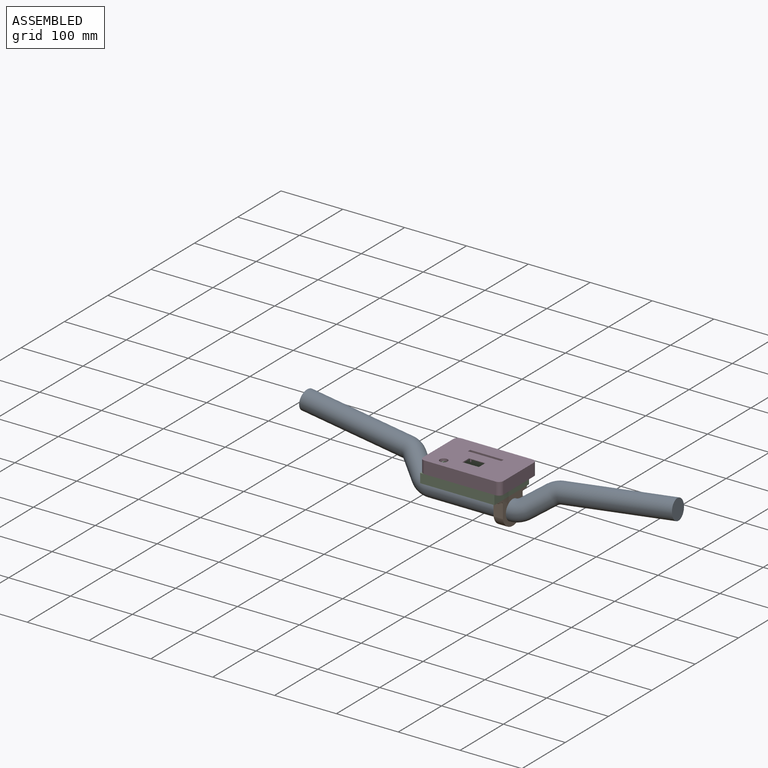
[diagram: assembled view]
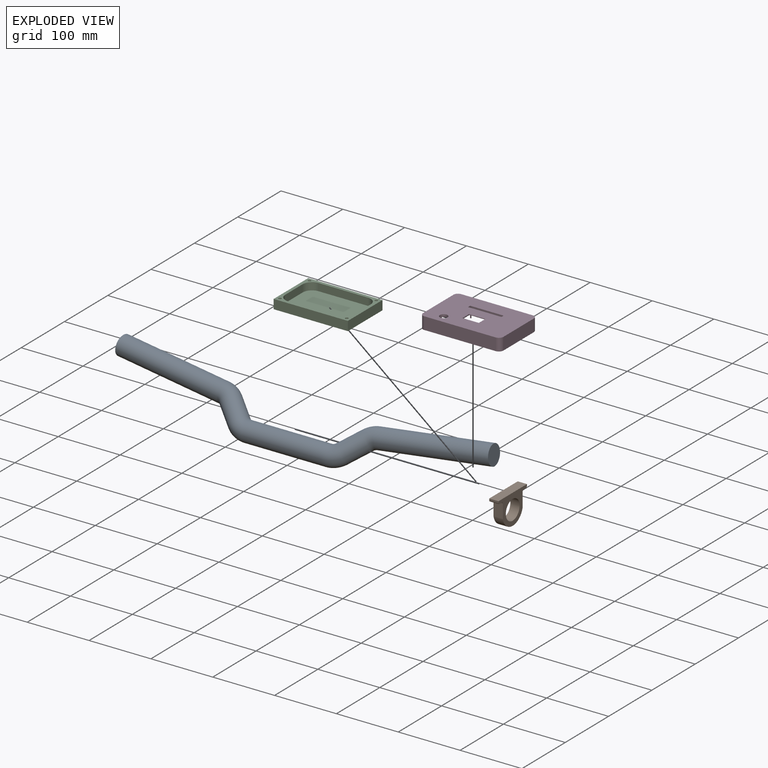
[diagram: exploded view]
GUIDED TOUR — FREECAD ASSEMBLY "Riserbar"

This assembly has 4 components, labeled P0..P3 below (a component is one placed body or linked part; the same part can appear more than once), held together by 0 modeled joints plus 3 derived contact edges. A joint is a constraint between two components; its type names the relative motion it leaves free:
  CONTACT — a derived adjacency edge — the two components touch in the source model (clearance under 2% of the assembly's diagonal); it is measured from the geometry, not a modeled constraint.
Axis/direction vectors are unit vectors and 'through' points are millimeter coordinates, both in the assembly's world frame.

MATES
  1. CONTACT "contact_0_1": P0 <-> P1, contact direction (1.000, 0.000, 0.000) through (65.19, -10.45, 11.99) mm (derived from contact, not a modeled constraint)
  2. CONTACT "contact_1_2": P1 <-> P2, contact direction (-0.815, 0.071, 0.576) through (64.45, 32.03, 25.00) mm (derived from contact, not a modeled constraint)
  3. CONTACT "contact_2_3": P2 <-> P3, contact direction (0.000, 0.000, 1.000) through (63.48, -38.91, 40.00) mm (derived from contact, not a modeled constraint)

ASSEMBLY ORDER
  1. P1 — the base component [order verified]
  2. P0 [order verified]
  3. P2 [order verified]
  4. P3 [order verified]
Order-tag legend:
  [order verified] — this step's position reverses a verified removal order: the component was checked to insert without passing through the ones already placed.

Of the 4 components, 4 carry a construction recipe — the FreeCAD feature program (sketches with constraints, then the solid features that consume them) that regenerates the part from scratch, quoted from this document or from the linked companion document it references; the rest are supplied as boundary geometry only. The tour below walks the components in assembly order: each is shown spotlighted twice — in the assembled view, then in the exploded view, where a leader line traces a displaced component back to its assembled socket (components that stay in place when exploded have no leader line; saturated green if recipe-attached, orange if geometry-only; every other component desaturated gray) — followed by its recipe or geometry summary and the mates that hold it.
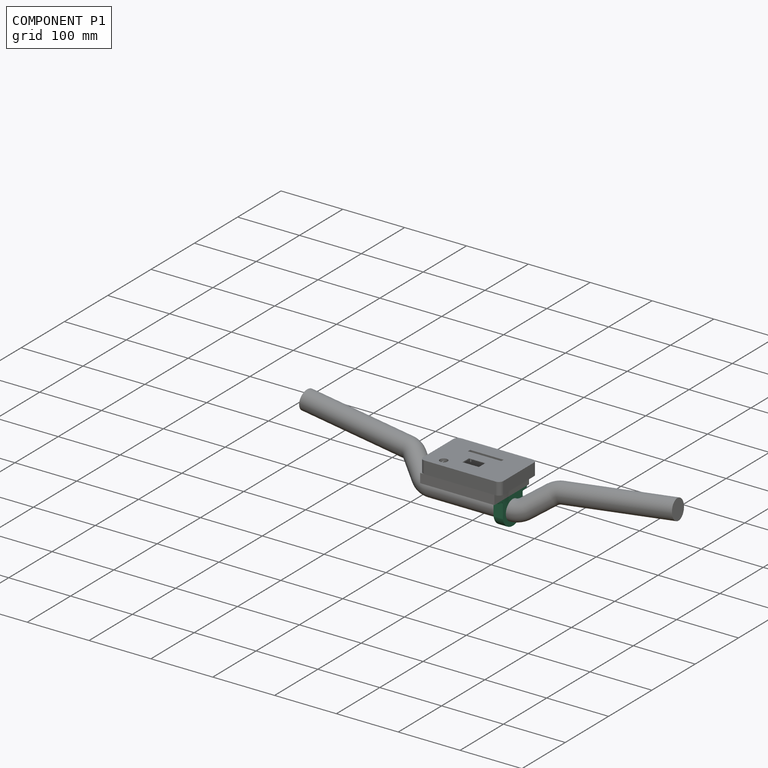
[diagram: component P1 — assembled]
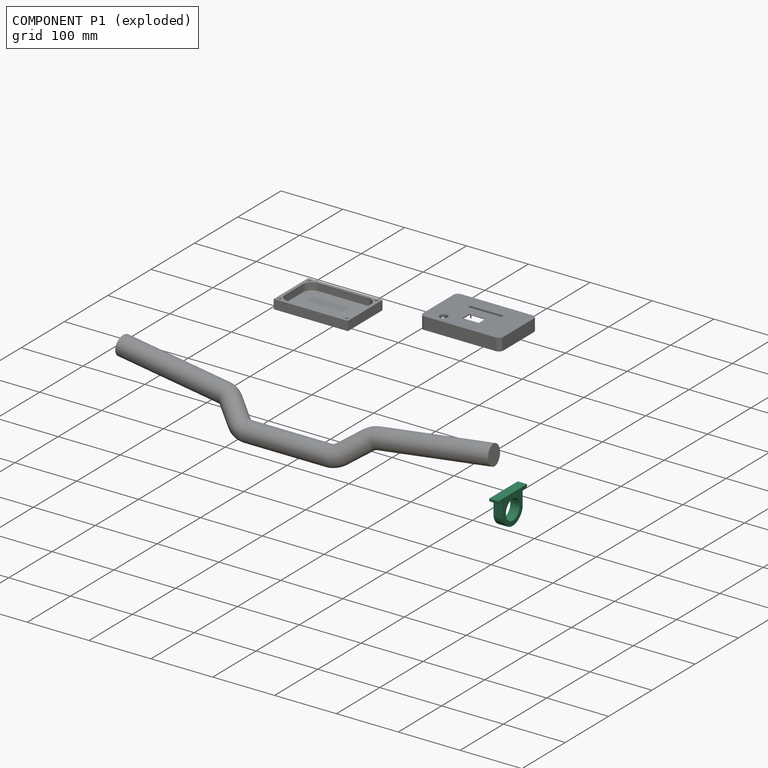
[diagram: component P1 — exploded]
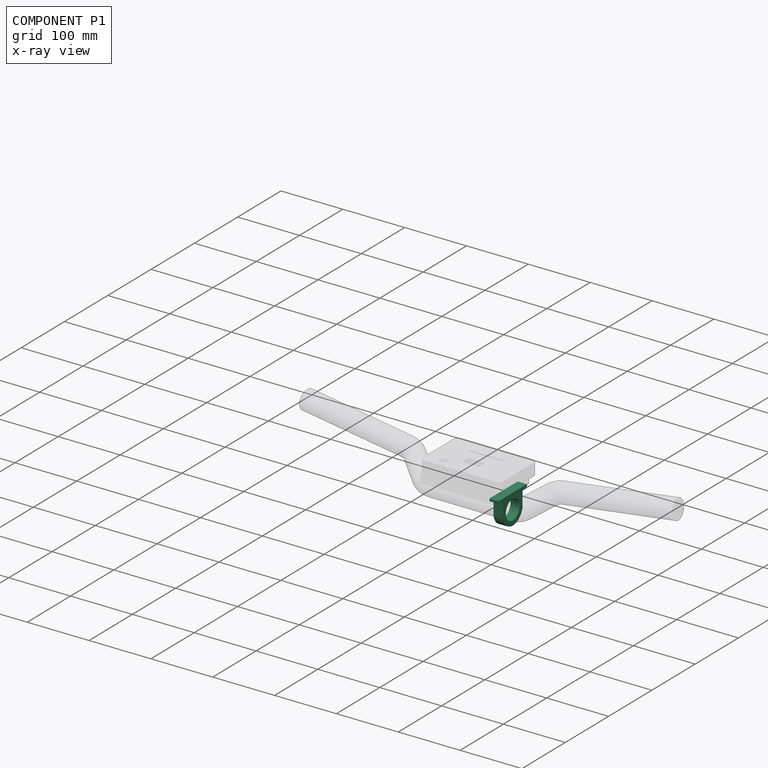
[diagram: component P1 — x-ray view]
COMPONENT P1 — recipe-attached ("Hlaterung - to split", modeled in this document).
Held by: resting contact with P0 (derived edge); resting contact with P2 (derived edge).
Construction recipe (the document's own serialized feature program — sketch geometry with constraints, then the solid features built on it; lengths are millimeters unless a unit is written):

FEATURE [Sketcher::SketchObject] Sketch002
  FullyConstrained = true
  MapMode = 5
  Placement = pos=(0,0,0) rot=(0.57735,0.57735,0.57735;2.0944rad)
  Support = -> [YZ_Plane001]
  sketch-geometry (18):
    g0: ArcOfCircle CenterX=0 CenterY=0 CenterZ=0 NormalX=0 NormalY=0 NormalZ=1 AngleXU=0 Radius=23.4 StartAngle=3.35693 EndAngle=6.06785
    g1: LineSegment StartX=-22.8596 StartY=-5 StartZ=0 EndX=-22.8596 EndY=25 EndZ=0
    g2: LineSegment StartX=-32.8596 StartY=25 StartZ=0 EndX=32.8596 EndY=25 EndZ=0
    g3: Circle CenterX=0 CenterY=0 CenterZ=0 NormalX=0 NormalY=0 NormalZ=1 AngleXU=0 Radius=15.9
    g4: LineSegment StartX=22.8596 StartY=-5 StartZ=0 EndX=22.8596 EndY=25 EndZ=0
    g5: LineSegment StartX=-22.8596 StartY=-5 StartZ=0 EndX=22.8596 EndY=-5 EndZ=0
    g6: LineSegment StartX=-22.8596 StartY=-5 StartZ=0 EndX=-22.8596 EndY=17.5 EndZ=0
    g7: LineSegment StartX=-25.3596 StartY=20 StartZ=0 EndX=-30.3596 EndY=20 EndZ=0
    g8: LineSegment StartX=-32.8596 StartY=22.5 StartZ=0 EndX=-32.8596 EndY=25 EndZ=0
    g9: ArcOfCircle CenterX=-25.3596 CenterY=17.5 CenterZ=0 NormalX=0 NormalY=0 NormalZ=1 AngleXU=0 Radius=2.5 StartAngle=0 EndAngle=1.5708
    g10: ArcOfCircle CenterX=-30.3596 CenterY=22.5 CenterZ=0 NormalX=0 NormalY=0 NormalZ=1 AngleXU=0 Radius=2.5 StartAngle=3.14159 EndAngle=4.71239
    g11: GeomPoint X=-32.8596 Y=20 Z=0
    g12: LineSegment StartX=22.8596 StartY=-5 StartZ=0 EndX=22.8596 EndY=17.5 EndZ=0
    g13: ArcOfCircle CenterX=25.3596 CenterY=17.5 CenterZ=0 NormalX=0 NormalY=0 NormalZ=1 AngleXU=0 Radius=2.5 StartAngle=1.5708 EndAngle=3.14159
    g14: LineSegment StartX=25.3596 StartY=20 StartZ=0 EndX=30.3596 EndY=20 EndZ=0
    g15: ArcOfCircle CenterX=30.3596 CenterY=22.5 CenterZ=0 NormalX=0 NormalY=0 NormalZ=1 AngleXU=0 Radius=2.5 StartAngle=4.71239 EndAngle=6.28319
    g16: LineSegment StartX=32.8596 StartY=22.5 StartZ=0 EndX=32.8596 EndY=25 EndZ=0
    g17: LineSegment StartX=0 StartY=-23.4 StartZ=0 EndX=0 EndY=-15.9 EndZ=0
  constraints (45):
    c: Coincident(g0,g-1)
    c: Vertical(g1)
    c: Coincident(g3,g0)
    c: Diameter(g3) = 31.8
    c: Coincident(g1,g0)
    c: Coincident(g4,g0)
    c: Vertical(g4)
    c: Coincident(g5,g0)
    c: Coincident(g5,g0)
    c: Horizontal(g5)
    c: DistanceY(g0,g0) = 5
    c: Coincident(g6,g0)
    c: Horizontal(g7)
    c: Vertical(g8)
    c: Coincident(g2,g8)
    c: PointOnObject(g1,g2)
    c: Tangent(g6,g9) = -1.5708
    c: Tangent(g7,g9) = -1.5708
    c: PointOnObject(g11,g7)
    c: PointOnObject(g11,g8)
    c: Tangent(g7,g10) = 1.5708
    c: Tangent(g8,g10) = 1.5708
    c: PointOnObject(g4,g2)
    c: Horizontal(g14)
    c: Vertical(g16)
    c: Tangent(g12,g13) = 1.5708
    c: Tangent(g14,g13) = 1.5708
    c: Tangent(g14,g15) = -1.5708
    c: Tangent(g16,g15) = -1.5708
    c: Coincident(g16,g2)
    c: PointOnObject(g12,g4)
    c: Coincident(g12,g0)
    c: PointOnObject(g17,g0)
    c: PointOnObject(g17,g3)
    c: Vertical(g17)
    c: PointOnObject(g17,g-2)
    c: DistanceY(g17,g17) = 7.5
    c: Symmetric(g9,g13,g-2)
    c: Symmetric(g2,g2,g-2)
    c: DistanceY(g7,g2) = 5
    c: DistanceX(g2,g6) = 10
    c: DistanceX(g12,g13) = 2.5
    c: DistanceX(g15,g15) = 2.5
    c: Symmetric(g10,g15,g-2)
    c: DistanceY(g0,g2) = 25
FEATURE [PartDesign::Pad] Pad
  Direction = (1,-2e-16,3e-16)
  Length = 15
  Length2 = 100
  Placement = pos=(0,0,0) rot=(0.57735,0.57735,0.57735;2.0944rad)
  Profile = -> Sketch002
  ReferenceAxis = -> Sketch002 [N_Axis]
  Type = 0
FEATURE [PartDesign::Body] Body001  label="Hlaterung - to split"
  Group = -> [Sketch002,Pad]
  Origin = -> Origin001
  Placement = pos=(50,0,0) rot=(1,0,0;0rad)
  Tip = -> Pad
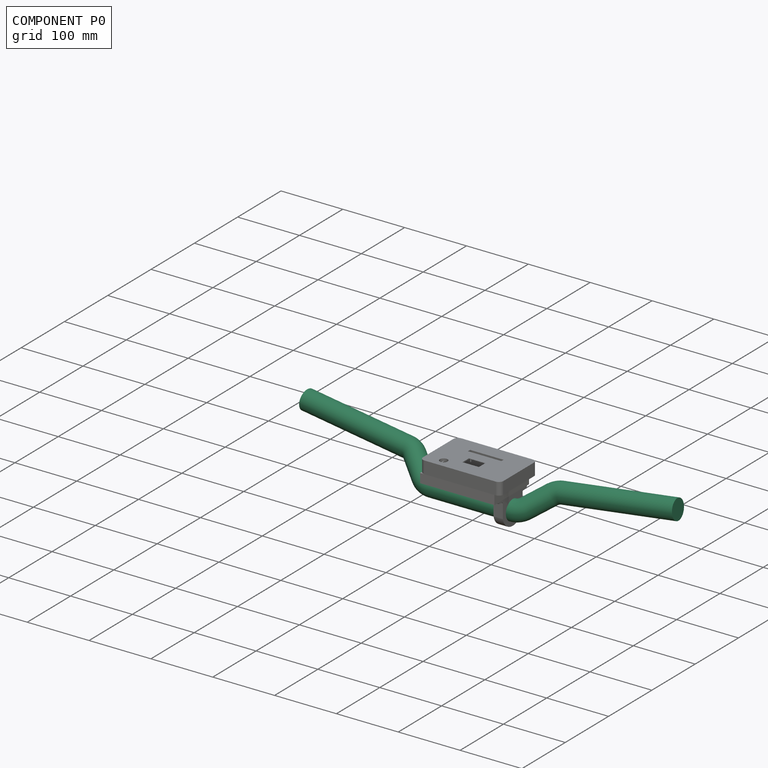
[diagram: component P0 — assembled]
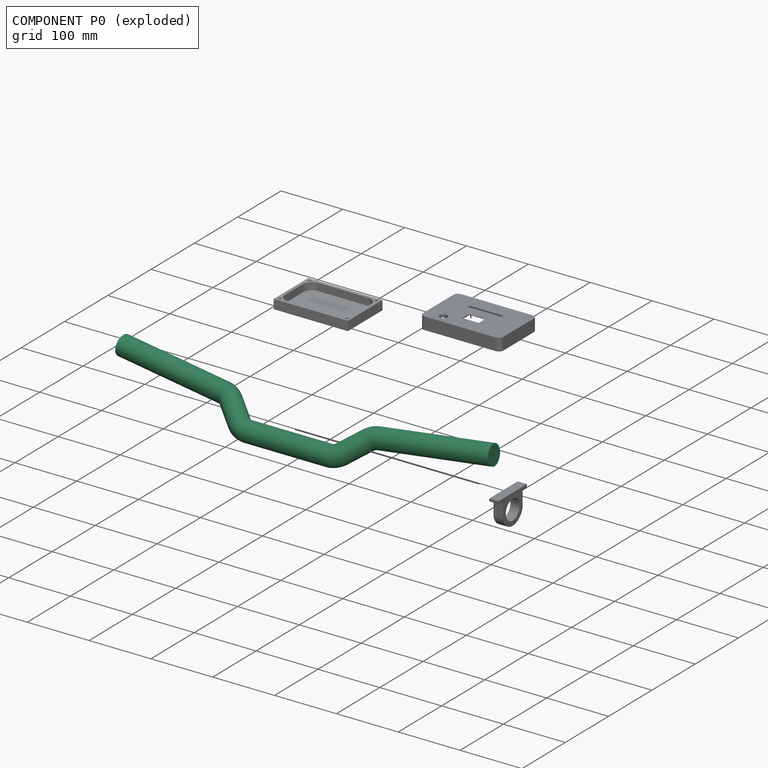
[diagram: component P0 — exploded]
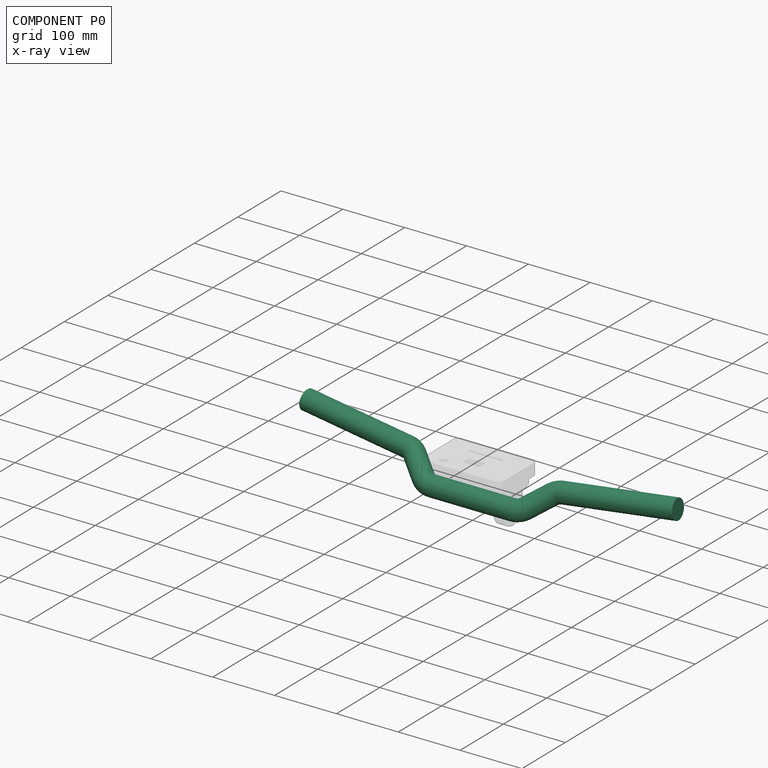
[diagram: component P0 — x-ray view]
COMPONENT P0 — recipe-attached ("Riserbar", modeled in this document).
Held by: resting contact with P1 (derived edge).
Construction recipe (the document's own serialized feature program — sketch geometry with constraints, then the solid features built on it; lengths are millimeters unless a unit is written):

FEATURE [Sketcher::SketchObject] Sketch  label="Lenker"
  FullyConstrained = true
  MapMode = 5
  Support = -> [XY_Plane]
  sketch-geometry (11):
    g0: LineSegment StartX=-300 StartY=65 StartZ=0 EndX=-125 EndY=41.9608 EndZ=0
    g1: LineSegment StartX=-110.585 StartY=34.8524 StartZ=0 EndX=-83.0555 EndY=7.32233 EndZ=0
    g2: LineSegment StartX=-65.3778 StartY=0 StartZ=0 EndX=65.3778 EndY=0 EndZ=0
    g3: LineSegment StartX=83.0555 StartY=7.32233 StartZ=0 EndX=110.585 EndY=34.8524 EndZ=0
    g4: LineSegment StartX=125 StartY=41.9608 StartZ=0 EndX=300 EndY=65 EndZ=0
    g5: ArcOfCircle CenterX=-128.263 CenterY=17.1747 CenterZ=0 NormalX=0 NormalY=0 NormalZ=1 AngleXU=0 Radius=25 StartAngle=0.785398 EndAngle=1.4399
    g6: ArcOfCircle CenterX=128.263 CenterY=17.1747 CenterZ=0 NormalX=0 NormalY=0 NormalZ=1 AngleXU=0 Radius=25 StartAngle=1.7017 EndAngle=2.35619
    g7: ArcOfCircle CenterX=-65.3778 CenterY=25 CenterZ=0 NormalX=0 NormalY=0 NormalZ=1 AngleXU=0 Radius=25 StartAngle=3.92699 EndAngle=4.71239
    g8: ArcOfCircle CenterX=65.3778 CenterY=25 CenterZ=0 NormalX=0 NormalY=0 NormalZ=1 AngleXU=0 Radius=25 StartAngle=4.71239 EndAngle=5.49779
    g9: LineSegment StartX=300 StartY=65 StartZ=0 EndX=-300 EndY=65 EndZ=0
    g10: LineSegment StartX=-125 StartY=41.9608 StartZ=0 EndX=125 EndY=41.9608 EndZ=0
  constraints (26):
    c: PointOnObject(g-1,g2)
    c: Symmetric(g0,g4,g-2)
    c: DistanceX(g0,g4) = 600
    c: Tangent(g0,g5) = 1.5708
    c: Tangent(g1,g5) = 1.5708
    c: Tangent(g3,g6) = 1.5708
    c: Tangent(g4,g6) = 1.5708
    c: Symmetric(g6,g5,g-2)
    c: Tangent(g1,g7) = -1.5708
    c: Tangent(g2,g7) = -1.5708
    c: Tangent(g2,g8) = -1.5708
    c: Tangent(g3,g8) = -1.5708
    c: Symmetric(g8,g7,g-2)
    c: Horizontal(g2)
    c: Coincident(g9,g4)
    c: Coincident(g9,g0)
    c: Coincident(g10,g0)
    c: Horizontal(g10)
    c: Coincident(g4,g10)
    c: Distance(g5,g1) = 25
    c: DistanceY(g2,g7) = 25
    c: DistanceX(g10,g10) = 250
    c: Angle(g0,g9) = 0.1309
    c: Angle(g3,g2) = 2.35619
    c: DistanceY(g-1,g4) = 65
    c: DistanceX(g2,g2) = 130.756
FEATURE [Sketcher::SketchObject] Sketch001  label="Profil"
  FullyConstrained = true
  MapMode = 5
  Placement = pos=(0,0,0) rot=(0.57735,0.57735,0.57735;2.0944rad)
  Support = -> [YZ_Plane]
  sketch-geometry (1):
    g0: Circle CenterX=0 CenterY=0 CenterZ=0 NormalX=0 NormalY=0 NormalZ=1 AngleXU=0 Radius=15.9
  constraints (2):
    c: Coincident(g0,g-1)
    c: Diameter(g0) = 31.8
FEATURE [PartDesign::AdditivePipe] AdditivePipe
  AuxilleryCurvelinear = true
  AuxillerySpineTangent = false
  Binormal = (0,0,0)
  Mode = 0
  Placement = pos=(0,0,0) rot=(0.57735,0.57735,0.57735;2.0944rad)
  Profile = -> Sketch001
  Spine = -> Sketch
  SpineTangent = false
  Transformation = 0
  Transition = 0
FEATURE [PartDesign::Body] Body  label="Riserbar"
  Group = -> [Sketch,Sketch001,AdditivePipe]
  Origin = -> Origin
  Placement = pos=(0,0,0) rot=(1,0,0;0.785398rad)
  Tip = -> AdditivePipe
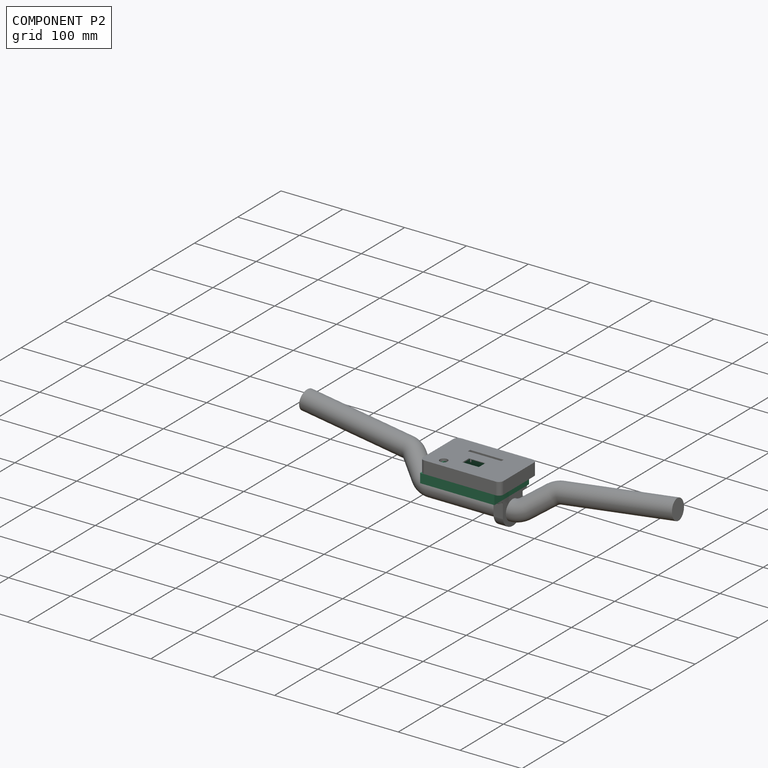
[diagram: component P2 — assembled]
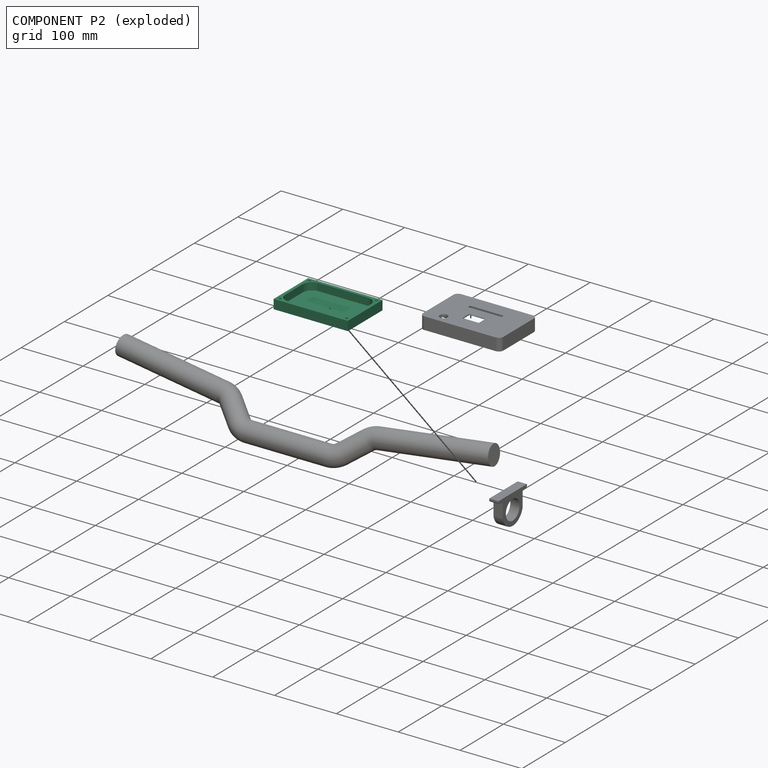
[diagram: component P2 — exploded]
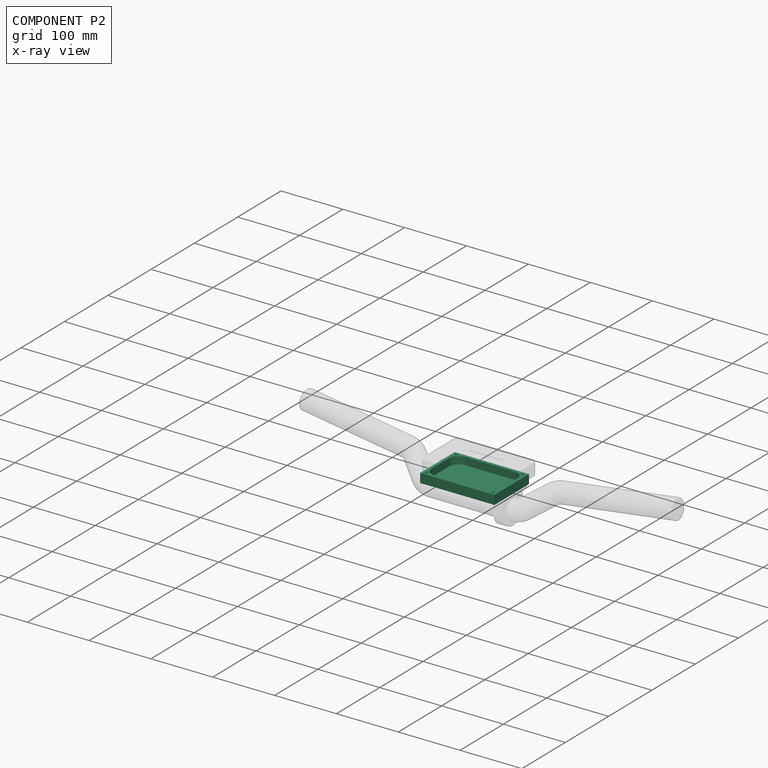
[diagram: component P2 — x-ray view]
COMPONENT P2 — recipe-attached ("Body003", modeled in this document).
Held by: resting contact with P1 (derived edge); resting contact with P3 (derived edge).
Construction recipe (the document's own serialized feature program — sketch geometry with constraints, then the solid features built on it; lengths are millimeters unless a unit is written):

FEATURE [PartDesign::AdditiveBox] Box
  AttacherType = Attacher::AttachEngine3D
  AttachmentOffset = pos=(-60,-46,0) rot=(0,0,1;0rad)
  Height = 15
  Length = 120
  MapMode = 45
  Placement = pos=(-52.5,-46,25) rot=(0,0,1;0rad)
  Support = -> [Pad]
  Width = 80
  expr: .AttachmentOffset.Base.x = -Length / 2
  expr: .AttachmentOffset.Base.y = -Width / 2 - 6mm
FEATURE [Sketcher::SketchObject] Sketch003
  ExternalGeometry = -> [Box]
  FullyConstrained = true
  MapMode = 5
  Placement = pos=(-52.5,-46,40) rot=(0,0,1;0rad)
  Support = -> [Box]
  sketch-geometry (11):
    g0: ArcOfCircle CenterX=20 CenterY=60 CenterZ=0 NormalX=0 NormalY=0 NormalZ=1 AngleXU=0 Radius=15 StartAngle=1.5708 EndAngle=3.14159
    g1: LineSegment StartX=20 StartY=75 StartZ=0 EndX=100 EndY=75 EndZ=0
    g2: ArcOfCircle CenterX=100 CenterY=60 CenterZ=0 NormalX=0 NormalY=0 NormalZ=1 AngleXU=0 Radius=15 StartAngle=1e-16 EndAngle=1.5708
    g3: LineSegment StartX=115 StartY=60 StartZ=0 EndX=115 EndY=20 EndZ=0
    g4: ArcOfCircle CenterX=100 CenterY=20 CenterZ=0 NormalX=0 NormalY=0 NormalZ=1 AngleXU=0 Radius=15 StartAngle=4.71239 EndAngle=6.28319
    g5: LineSegment StartX=100 StartY=5 StartZ=0 EndX=20 EndY=5 EndZ=0
    g6: ArcOfCircle CenterX=20 CenterY=20 CenterZ=0 NormalX=0 NormalY=0 NormalZ=1 AngleXU=0 Radius=15 StartAngle=3.14159 EndAngle=4.71239
    g7: LineSegment StartX=5 StartY=20 StartZ=0 EndX=5 EndY=60 EndZ=0
    g8: GeomPoint X=5 Y=75 Z=0
    g9: GeomPoint X=115 Y=5 Z=0
    g10: GeomPoint X=60 Y=40 Z=0
  constraints (23):
    c: Tangent(g0,g1) = 1.5708
    c: Tangent(g1,g2) = 1.5708
    c: Tangent(g2,g3) = 1.5708
    c: Tangent(g3,g4) = 1.5708
    c: Tangent(g4,g5) = 1.5708
    c: Tangent(g5,g6) = 1.5708
    c: Tangent(g6,g7) = 1.5708
    c: Tangent(g7,g0) = 1.5708
    c: Horizontal(g1)
    c: Horizontal(g5)
    c: Vertical(g3)
    c: Vertical(g7)
    c: Equal(g0,g2)
    c: PointOnObject(g8,g1)
    c: PointOnObject(g8,g7)
    c: PointOnObject(g9,g3)
    c: PointOnObject(g9,g5)
    c: Symmetric(g-1,g-3,g10)
    c: Symmetric(g2,g6,g10)
    c: Symmetric(g0,g4,g10)
    c: DistanceX(g2,g-3) = 5
    c: DistanceY(g1,g-3) = 5
    c: DistanceY(g2,g1) = 15
FEATURE [PartDesign::Pocket] Pocket
  BaseFeature = -> Box
  Direction = (1,1,1)
  Length = 12
  Length2 = 100
  Placement = pos=(-52.5,-46,25) rot=(0,0,1;0rad)
  Profile = -> Sketch003
  Type = 0
FEATURE [Sketcher::SketchObject] Sketch004
  ExternalGeometry = -> [Pocket]
  FullyConstrained = true
  MapMode = 5
  Placement = pos=(-52.5,-46,25) rot=(1,0,0;3.14159rad)
  Support = -> [Pocket]
  sketch-geometry (9):
    g0: Circle CenterX=6 CenterY=-6 CenterZ=0 NormalX=0 NormalY=0 NormalZ=1 AngleXU=0 Radius=3
    g1: Circle CenterX=114 CenterY=-6 CenterZ=0 NormalX=0 NormalY=0 NormalZ=1 AngleXU=0 Radius=3
    g2: Circle CenterX=6 CenterY=-74 CenterZ=0 NormalX=0 NormalY=0 NormalZ=1 AngleXU=0 Radius=3
    g3: Circle CenterX=114 CenterY=-74 CenterZ=0 NormalX=0 NormalY=0 NormalZ=1 AngleXU=0 Radius=3
    g4: GeomPoint X=60 Y=-40 Z=0
    g5: LineSegment StartX=6 StartY=-6 StartZ=0 EndX=114 EndY=-6 EndZ=0
    g6: LineSegment StartX=114 StartY=-6 StartZ=0 EndX=114 EndY=-74 EndZ=0
    g7: LineSegment StartX=114 StartY=-74 StartZ=0 EndX=6 EndY=-74 EndZ=0
    g8: LineSegment StartX=6 StartY=-74 StartZ=0 EndX=6 EndY=-6 EndZ=0
  constraints (20):
    c: Symmetric(g1,g2,g4)
    c: Symmetric(g3,g0,g4)
    c: Equal(g0,g1)
    c: Equal(g1,g3)
    c: Equal(g3,g2)
    c: Diameter(g2) = 6
    c: Symmetric(g-4,g-1,g4)
    c: Coincident(g5,g6)
    c: Coincident(g6,g7)
    c: Coincident(g7,g8)
    c: Coincident(g8,g5)
    c: Horizontal(g5)
    c: Horizontal(g7)
    c: Vertical(g6)
    c: Vertical(g8)
    c: Coincident(g5,g0)
    c: Coincident(g6,g3)
    c: Coincident(g1,g5)
    c: DistanceX(g-4,g2) = 6
    c: DistanceY(g-4,g2) = 6
FEATURE [PartDesign::Hole] Hole
  BaseFeature = -> Pocket
  CustomThreadClearance = 0
  Depth = 25
  DepthType = 0
  Diameter = 4.5
  DrillForDepth = false
  DrillPoint = 1
  DrillPointAngle = 118
  HoleCutCountersinkAngle = 90
  HoleCutCustomValues = false
  HoleCutDepth = 4.4
  HoleCutDiameter = 8
  HoleCutType = 11
  ModelThread = false
  Placement = pos=(-52.5,-46,25) rot=(0,0,1;0rad)
  Profile = -> Sketch004
  Tapered = false
  TaperedAngle = 90
  ThreadClass = 0
  ThreadDepth = 25
  ThreadDepthType = 0
  ThreadDirection = 0
  ThreadFit = 0
  ThreadSize = 11
  ThreadType = 1
  Threaded = false
  UseCustomThreadClearance = false
FEATURE [Sketcher::SketchObject] Sketch005
  FullyConstrained = false
  MapMode = 5
  Placement = pos=(-52.5,-46,25) rot=(1,0,0;3.14159rad)
  Support = -> [Hole]
  sketch-geometry (6):
    g0: LineSegment StartX=21.789 StartY=-22.6898 StartZ=0 EndX=35.289 EndY=-22.6898 EndZ=0
    g1: LineSegment StartX=35.289 StartY=-22.6898 StartZ=0 EndX=35.289 EndY=-8.18982 EndZ=0
    g2: LineSegment StartX=35.289 StartY=-8.18982 StartZ=0 EndX=21.789 EndY=-8.18982 EndZ=0
    g3: LineSegment StartX=21.789 StartY=-8.18982 StartZ=0 EndX=21.789 EndY=-22.6898 EndZ=0
    g4: Circle CenterX=92.5 CenterY=-16.9989 CenterZ=0 NormalX=0 NormalY=0 NormalZ=1 AngleXU=0 Radius=7.5
    g5: Circle CenterX=92.5 CenterY=-16.9989 CenterZ=0 NormalX=0 NormalY=0 NormalZ=1 AngleXU=0 Radius=1.38
  constraints (13):
    c: Coincident(g0,g1)
    c: Coincident(g1,g2)
    c: Coincident(g2,g3)
    c: Coincident(g3,g0)
    c: Horizontal(g0)
    c: Horizontal(g2)
    c: Vertical(g1)
    c: Vertical(g3)
    c: DistanceY(g3,g3) = 14.5
    c: DistanceX(g2,g2) = 13.5
    c: Diameter(g4) = 15
    c: Coincident(g5,g4)
    c: Diameter(g5) = 2.76
FEATURE [PartDesign::Pocket] Pocket001
  BaseFeature = -> Hole
  Direction = (1,1,1)
  Length = 5
  Length2 = 100
  Placement = pos=(-52.5,-46,25) rot=(0,0,1;0rad)
  Profile = -> Sketch005
  Type = 0
FEATURE [PartDesign::Body] Body003
  Group = -> [Box,Sketch003,Pocket,Sketch004,Hole,Sketch005,Pocket001]
  Origin = -> Origin003
  Tip = -> Pocket001
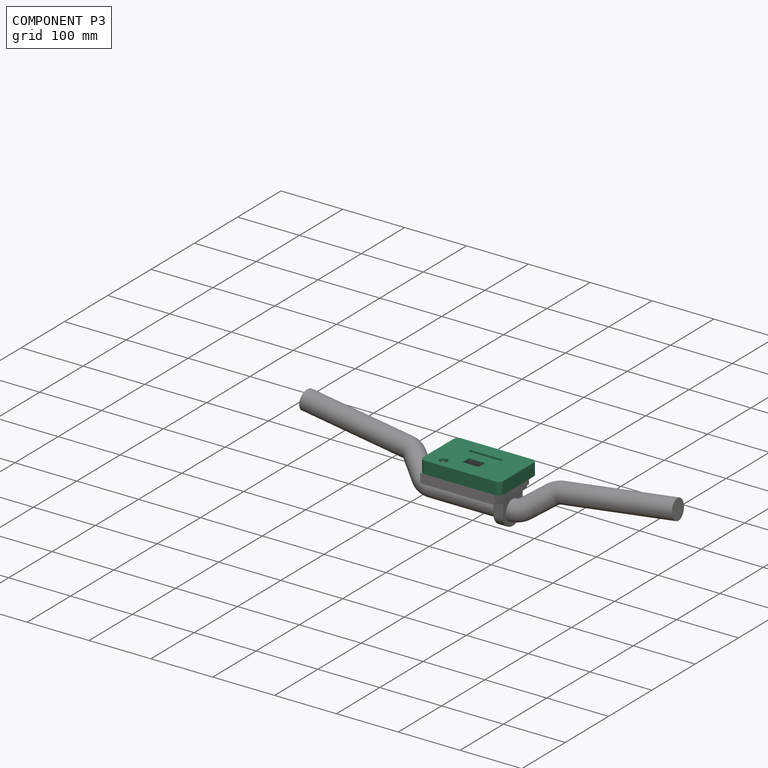
[diagram: component P3 — assembled]
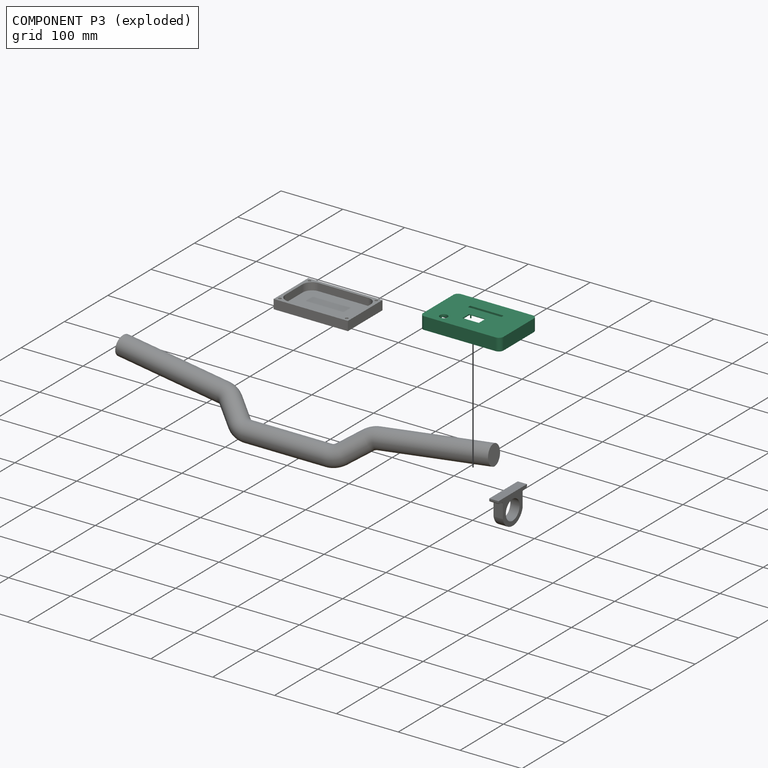
[diagram: component P3 — exploded]
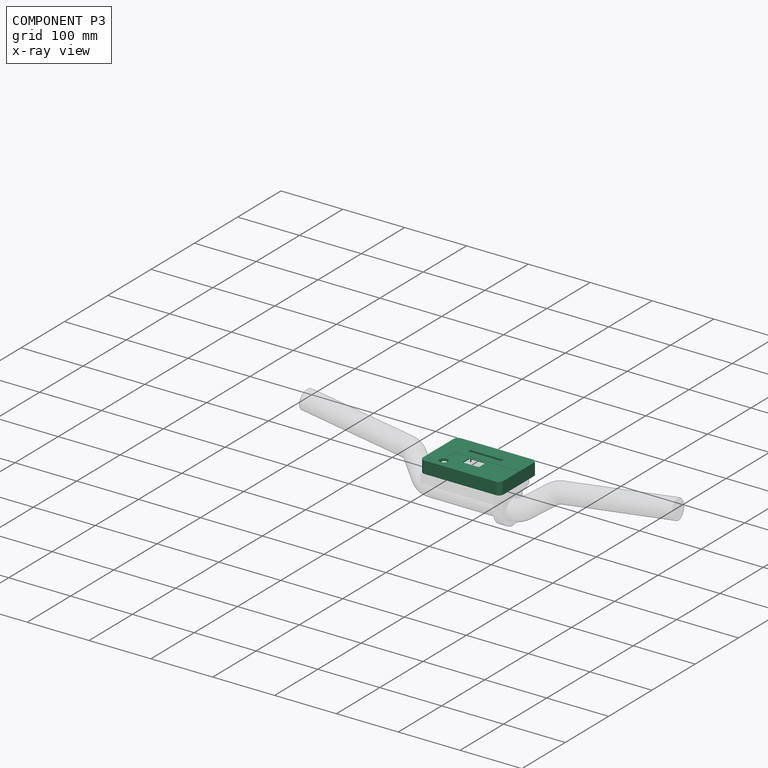
[diagram: component P3 — x-ray view]
COMPONENT P3 — recipe-attached ("Front", a linked part whose construction recipe lives in a companion FreeCAD document of the same project; that document's serialized recipe follows).
Held by: resting contact with P2 (derived edge).
Construction recipe (the companion document, serialized — sketch geometry with constraints, then the solid features built on it; lengths are millimeters unless a unit is written):

FCSTD DOCUMENT  (FreeCAD 0.20R27319 (Git))
Label: FirstDraft
License: All rights reserved
LicenseURL: http://en.wikipedia.org/wiki/All_rights_reserved
objects: Part::Feature×49, Part::FeaturePython×14, Sketcher::SketchObject×12, App::Part×10, PartDesign::Pocket×7, PartDesign::CoordinateSystem×4, App::DocumentObjectGroup×4, PartDesign::Line×4, PartDesign::Pad×3, App::Link×2, PartDesign::Body×2, PartDesign::AdditiveBox×1, Mesh::Feature×1, App::FeaturePython×1, PartDesign::Fillet×1, PartDesign::ShapeBinder×1, PartDesign::Hole×1
note: 112 computed .brp shape members not serialized (recipe doc carries the construction recipe); baked Part::Feature solids carry a one-line shape summary decoded from their .brp

FEATURE [PartDesign::AdditiveBox] Box002
  AttacherType = Attacher::AttachEngine3D
  Height = 20
  Length = 130
  Width = 85
FEATURE [Sketcher::SketchObject] Sketch001
  ExternalGeometry = -> [Box002]
  FullyConstrained = true
  MapMode = 5
  Placement = pos=(0,0,0) rot=(1,0,0;3.14159rad)
  Support = -> [Box002]
  sketch-geometry (23):
    g0: LineSegment StartX=15.8322 StartY=-4 StartZ=0 EndX=114.168 EndY=-4 EndZ=0
    g1: LineSegment StartX=126 StartY=-15.8322 StartZ=0 EndX=126 EndY=-69.1678 EndZ=0
    g2: LineSegment StartX=114.168 StartY=-81 StartZ=0 EndX=15.8322 EndY=-81 EndZ=0
    g3: LineSegment StartX=4 StartY=-69.1678 StartZ=0 EndX=4 EndY=-15.8322 EndZ=0
    g4: GeomPoint X=4 Y=-4 Z=0
    g5: GeomPoint X=126 Y=-81 Z=0
    g6: GeomPoint X=65 Y=-42.5 Z=0
    g7: ArcOfCircle CenterX=4 CenterY=-81 CenterZ=0 NormalX=0 NormalY=0 NormalZ=1 AngleXU=0 Radius=10 StartAngle=0.167448 EndAngle=1.40335
    g8: ArcOfCircle CenterX=6 CenterY=-69.1678 CenterZ=0 NormalX=0 NormalY=0 NormalZ=1 AngleXU=0 Radius=2 StartAngle=3.14159 EndAngle=4.54494
    g9: ArcOfCircle CenterX=15.8322 CenterY=-79 CenterZ=0 NormalX=0 NormalY=0 NormalZ=1 AngleXU=0 Radius=2 StartAngle=3.30904 EndAngle=4.71239
    g10: ArcOfCircle CenterX=4 CenterY=-4 CenterZ=0 NormalX=0 NormalY=0 NormalZ=1 AngleXU=0 Radius=10 StartAngle=4.87984 EndAngle=6.11574
    g11: ArcOfCircle CenterX=126 CenterY=-4 CenterZ=0 NormalX=0 NormalY=0 NormalZ=1 AngleXU=0 Radius=10 StartAngle=3.30904 EndAngle=4.54494
    g12: ArcOfCircle CenterX=126 CenterY=-81 CenterZ=0 NormalX=0 NormalY=0 NormalZ=1 AngleXU=0 Radius=10 StartAngle=1.73824 EndAngle=2.97414
    g13: LineSegment StartX=4 StartY=-81 StartZ=0 EndX=126 EndY=-81 EndZ=0
    g14: LineSegment StartX=126 StartY=-81 StartZ=0 EndX=126 EndY=-4 EndZ=0
    g15: LineSegment StartX=126 StartY=-4 StartZ=0 EndX=4 EndY=-4 EndZ=0
    g16: LineSegment StartX=4 StartY=-4 StartZ=0 EndX=4 EndY=-81 EndZ=0
    g17: ArcOfCircle CenterX=6 CenterY=-15.8322 CenterZ=0 NormalX=0 NormalY=0 NormalZ=1 AngleXU=0 Radius=2 StartAngle=1.73824 EndAngle=3.14159
    g18: ArcOfCircle CenterX=124 CenterY=-15.8322 CenterZ=0 NormalX=0 NormalY=0 NormalZ=1 AngleXU=0 Radius=2 StartAngle=0 EndAngle=1.40335
    g19: ArcOfCircle CenterX=15.8322 CenterY=-6 CenterZ=0 NormalX=0 NormalY=0 NormalZ=1 AngleXU=0 Radius=2 StartAngle=1.5708 EndAngle=2.97414
    g20: ArcOfCircle CenterX=114.168 CenterY=-6 CenterZ=0 NormalX=0 NormalY=0 NormalZ=1 AngleXU=0 Radius=2 StartAngle=0.167448 EndAngle=1.5708
    g21: ArcOfCircle CenterX=124 CenterY=-69.1678 CenterZ=0 NormalX=0 NormalY=0 NormalZ=1 AngleXU=0 Radius=2 StartAngle=4.87984 EndAngle=6.28319
    g22: ArcOfCircle CenterX=114.168 CenterY=-79 CenterZ=0 NormalX=0 NormalY=0 NormalZ=1 AngleXU=0 Radius=2 StartAngle=4.71239 EndAngle=6.11574
  constraints (56):
    c: Horizontal(g0)
    c: Horizontal(g2)
    c: Vertical(g1)
    c: Vertical(g3)
    c: PointOnObject(g4,g0)
    c: PointOnObject(g4,g3)
    c: PointOnObject(g5,g1)
    c: PointOnObject(g5,g2)
    c: Symmetric(g-6,g-4,g6)
    c: Tangent(g7,g8) = 1.5708
    c: Tangent(g3,g8) = 1.5708
    c: Tangent(g2,g9) = 1.5708
    c: Tangent(g7,g9) = 1.5708
    c: Coincident(g12,g5)
    c: Coincident(g13,g14)
    c: Coincident(g14,g15)
    c: Coincident(g15,g16)
    c: Coincident(g16,g13)
    c: Horizontal(g13)
    c: Horizontal(g15)
    c: Vertical(g14)
    c: Vertical(g16)
    c: Coincident(g13,g7)
    c: Coincident(g14,g11)
    c: Coincident(g4,g10)
    c: Symmetric(g7,g11,g6)
    c: Tangent(g3,g17) = 1.5708
    c: Tangent(g10,g17) = 1.5708
    c: Tangent(g1,g18) = 1.5708
    c: Tangent(g11,g18) = 1.5708
    c: Tangent(g10,g19) = 1.5708
    c: Tangent(g0,g19) = 1.5708
    c: Tangent(g11,g20) = 1.5708
    c: Tangent(g0,g20) = 1.5708
    c: Tangent(g1,g21) = 1.5708
    c: Tangent(g12,g21) = 1.5708
    c: Tangent(g2,g22) = 1.5708
    c: Tangent(g12,g22) = 1.5708
    c: PointOnObject(g0,g15)
    c: PointOnObject(g3,g16)
    c: PointOnObject(g1,g14)
    c: DistanceX(g-6,g7) = 4
    c: DistanceY(g-6,g7) = 4
    c: PointOnObject(g2,g13)
    c: Equal(g7,g10)
    c: Equal(g10,g11)
    c: Equal(g11,g12)
    c: Radius(g7) = 10
    c: Equal(g9,g8)
    c: Equal(g8,g19)
    c: Equal(g19,g17)
    c: Equal(g17,g20)
    c: Equal(g20,g18)
    c: Equal(g18,g21)
    c: Equal(g21,g22)
    c: Radius(g9) = 2
FEATURE [PartDesign::Pocket] Pocket001
  BaseFeature = -> Box002
  Direction = (0,0,1)
  Length = 16
  Length2 = 100
  Profile = -> Sketch001
  ReferenceAxis = -> Sketch001 [N_Axis]
  Type = 0
  expr: Length = <<Box002>>.Height - 4mm
FEATURE [Sketcher::SketchObject] Sketch002
  ExternalGeometry = -> [Pocket001]
  FullyConstrained = true
  MapMode = 5
  Placement = pos=(0,0,16) rot=(1,0,0;3.14159rad)
  Support = -> [Pocket001]
  sketch-geometry (11):
    g0: LineSegment StartX=49 StartY=-14 StartZ=0 EndX=81 EndY=-14 EndZ=0
    g1: LineSegment StartX=81 StartY=-14 StartZ=0 EndX=81 EndY=-46 EndZ=0
    g2: LineSegment StartX=81 StartY=-46 StartZ=0 EndX=49 EndY=-46 EndZ=0
    g3: LineSegment StartX=49 StartY=-46 StartZ=0 EndX=49 EndY=-14 EndZ=0
    g4: GeomPoint X=65 Y=-4 Z=0
    g5: LineSegment StartX=65 StartY=-4 StartZ=0 EndX=65 EndY=-14 EndZ=0
    g6: LineSegment StartX=37.5 StartY=-56 StartZ=0 EndX=92.5 EndY=-56 EndZ=0
    g7: LineSegment StartX=92.5 StartY=-56 StartZ=0 EndX=92.5 EndY=-66 EndZ=0
    g8: LineSegment StartX=92.5 StartY=-66 StartZ=0 EndX=37.5 EndY=-66 EndZ=0
    g9: LineSegment StartX=37.5 StartY=-66 StartZ=0 EndX=37.5 EndY=-56 EndZ=0
    g10: LineSegment StartX=65 StartY=-14 StartZ=0 EndX=65 EndY=-56 EndZ=0
  constraints (29):
    c: Coincident(g0,g1)
    c: Coincident(g1,g2)
    c: Coincident(g2,g3)
    c: Coincident(g3,g0)
    c: Horizontal(g0)
    c: Horizontal(g2)
    c: Vertical(g1)
    c: Vertical(g3)
    c: Coincident(g5,g4)
    c: Vertical(g5)
    c: Symmetric(g0,g0,g5)
    c: DistanceY(g5,g5) = 10
    c: DistanceY(g1,g1) = 32
    c: Equal(g1,g0)
    c: Coincident(g6,g7)
    c: Coincident(g7,g8)
    c: Coincident(g8,g9)
    c: Coincident(g9,g6)
    c: Horizontal(g6)
    c: Horizontal(g8)
    c: Vertical(g7)
    c: Vertical(g9)
    c: DistanceX(g6,g6) = 55
    c: DistanceY(g7,g7) = 10
    c: Coincident(g10,g5)
    c: Vertical(g10)
    c: Symmetric(g6,g6,g10)
    c: DistanceY(g6,g1) = 10
    c: Symmetric(g-3,g-3,g4)
FEATURE [PartDesign::Pocket] Pocket002  label="Platz OLED und LED-Strip"
  BaseFeature = -> Pocket001
  Direction = (0,0,1)
  Length = 3
  Length2 = 100
  Profile = -> Sketch002
  Type = 0
FEATURE [Sketcher::SketchObject] Sketch003
  ExternalGeometry = -> [Sketch002,Pocket002]
  FullyConstrained = true
  MapMode = 5
  Placement = pos=(0,0,16) rot=(1,0,0;3.14159rad)
  Support = -> [Pocket002]
  sketch-geometry (10):
    g0: LineSegment StartX=51.75 StartY=-24.5 StartZ=0 EndX=78.25 EndY=-24.5 EndZ=0
    g1: LineSegment StartX=78.25 StartY=-24.5 StartZ=0 EndX=78.25 EndY=-39.5 EndZ=0
    g2: LineSegment StartX=78.25 StartY=-39.5 StartZ=0 EndX=51.75 EndY=-39.5 EndZ=0
    g3: LineSegment StartX=51.75 StartY=-39.5 StartZ=0 EndX=51.75 EndY=-24.5 EndZ=0
    g4: LineSegment StartX=38 StartY=-57 StartZ=0 EndX=92 EndY=-57 EndZ=0
    g5: LineSegment StartX=92 StartY=-57 StartZ=0 EndX=92 EndY=-62 EndZ=0
    g6: LineSegment StartX=92 StartY=-62 StartZ=0 EndX=38 EndY=-62 EndZ=0
    g7: LineSegment StartX=38 StartY=-62 StartZ=0 EndX=38 EndY=-57 EndZ=0
    g8: LineSegment StartX=65 StartY=-57 StartZ=0 EndX=65 EndY=-56 EndZ=0
    g9: LineSegment StartX=65 StartY=-24.5 StartZ=0 EndX=65 EndY=-14 EndZ=0
  constraints (28):
    c: Coincident(g0,g1)
    c: Coincident(g1,g2)
    c: Coincident(g2,g3)
    c: Coincident(g3,g0)
    c: Horizontal(g0)
    c: Horizontal(g2)
    c: Vertical(g1)
    c: Vertical(g3)
    c: DistanceX(g0,g0) = 26.5
    c: DistanceY(g1,g1) = 15
    c: Coincident(g4,g5)
    c: Coincident(g5,g6)
    c: Coincident(g6,g7)
    c: Coincident(g7,g4)
    c: Horizontal(g4)
    c: Horizontal(g6)
    c: Vertical(g5)
    c: Vertical(g7)
    c: DistanceX(g4,g-3) = 0.5
    c: Vertical(g8)
    c: Symmetric(g4,g4,g8)
    c: Symmetric(g-3,g-4,g8)
    c: DistanceY(g5,g5) = 5
    c: DistanceY(g4,g-3) = 1
    c: Vertical(g9)
    c: Symmetric(g0,g0,g9)
    c: DistanceY(g9,g9) = 10.5
    c: Symmetric(g-5,g-5,g9)
FEATURE [PartDesign::Pocket] Pocket003  label="Sichtausschnitt"
  BaseFeature = -> Pocket002
  Direction = (0,0,1)
  Length = 1.01
  Length2 = 100
  Profile = -> Sketch003
  ReferenceAxis = -> Sketch003 [N_Axis]
  Type = 1
FEATURE [Sketcher::SketchObject] Sketch004  label="Sketch Halter OLED"
  ExternalGeometry = -> [Sketch002]
  FullyConstrained = true
  MapMode = 5
  Placement = pos=(0,0,19) rot=(1,0,0;3.14159rad)
  Support = -> [Pocket003]
  sketch-geometry (9):
    g0: Circle CenterX=53.1 CenterY=-18.35 CenterZ=0 NormalX=0 NormalY=0 NormalZ=1 AngleXU=0 Radius=1
    g1: Circle CenterX=76.9 CenterY=-18.35 CenterZ=0 NormalX=0 NormalY=0 NormalZ=1 AngleXU=0 Radius=1
    g2: Circle CenterX=76.9 CenterY=-41.65 CenterZ=0 NormalX=0 NormalY=0 NormalZ=1 AngleXU=0 Radius=1
    g3: Circle CenterX=53.1 CenterY=-41.65 CenterZ=0 NormalX=0 NormalY=0 NormalZ=1 AngleXU=0 Radius=1
    g4: LineSegment StartX=53.1 StartY=-18.35 StartZ=0 EndX=76.9 EndY=-18.35 EndZ=0
    g5: LineSegment StartX=76.9 StartY=-18.35 StartZ=0 EndX=76.9 EndY=-41.65 EndZ=0
    g6: LineSegment StartX=76.9 StartY=-41.65 StartZ=0 EndX=53.1 EndY=-41.65 EndZ=0
    g7: LineSegment StartX=53.1 StartY=-41.65 StartZ=0 EndX=53.1 EndY=-18.35 EndZ=0
    g8: GeomPoint X=65 Y=-30 Z=0
  constraints (20):
    c: Coincident(g4,g5)
    c: Coincident(g5,g6)
    c: Coincident(g6,g7)
    c: Coincident(g7,g4)
    c: Horizontal(g4)
    c: Horizontal(g6)
    c: Vertical(g5)
    c: Vertical(g7)
    c: Coincident(g4,g0)
    c: Coincident(g5,g2)
    c: Coincident(g1,g4)
    c: Coincident(g3,g6)
    c: Equal(g0,g1)
    c: Equal(g1,g2)
    c: Equal(g2,g3)
    c: Diameter(g1) = 2
    c: DistanceX(g4,g4) = 23.8
    c: DistanceY(g5,g5) = 23.3
    c: Symmetric(g-4,g-6,g8)
    c: Symmetric(g3,g1,g8)
FEATURE [PartDesign::Pad] Pad  label="Halter OLED"
  BaseFeature = -> Pocket003
  Direction = (0,0,-1)
  Length = 5
  Length2 = 100
  Profile = -> Sketch004
  ReferenceAxis = -> Sketch004 [N_Axis]
  Type = 0
FEATURE [Sketcher::SketchObject] Sketch005
  ExternalGeometry = -> [Sketch002]
  FullyConstrained = true
  MapMode = 5
  Placement = pos=(0,0,16) rot=(1,0,0;3.14159rad)
  Support = -> [Pad]
  sketch-geometry (26):
    g0: LineSegment StartX=50 StartY=-6 StartZ=0 EndX=80 EndY=-6 EndZ=0
    g1: LineSegment StartX=80 StartY=-6 StartZ=0 EndX=80 EndY=-13 EndZ=0
    g2: LineSegment StartX=80 StartY=-13 StartZ=0 EndX=50 EndY=-13 EndZ=0
    g3: LineSegment StartX=50 StartY=-13 StartZ=0 EndX=50 EndY=-6 EndZ=0
    g4: LineSegment StartX=82 StartY=-15 StartZ=0 EndX=89 EndY=-15 EndZ=0
    g5: LineSegment StartX=89 StartY=-15 StartZ=0 EndX=89 EndY=-45 EndZ=0
    g6: LineSegment StartX=89 StartY=-45 StartZ=0 EndX=82 EndY=-45 EndZ=0
    g7: LineSegment StartX=82 StartY=-45 StartZ=0 EndX=82 EndY=-15 EndZ=0
    g8: LineSegment StartX=41 StartY=-15 StartZ=0 EndX=48 EndY=-15 EndZ=0
    g9: LineSegment StartX=48 StartY=-15 StartZ=0 EndX=48 EndY=-45 EndZ=0
    g10: LineSegment StartX=48 StartY=-45 StartZ=0 EndX=41 EndY=-45 EndZ=0
    g11: LineSegment StartX=41 StartY=-45 StartZ=0 EndX=41 EndY=-15 EndZ=0
    g12: LineSegment StartX=50 StartY=-47 StartZ=0 EndX=80 EndY=-47 EndZ=0
    g13: LineSegment StartX=80 StartY=-47 StartZ=0 EndX=80 EndY=-54 EndZ=0
    g14: LineSegment StartX=80 StartY=-54 StartZ=0 EndX=50 EndY=-54 EndZ=0
    g15: LineSegment StartX=50 StartY=-54 StartZ=0 EndX=50 EndY=-47 EndZ=0
    g16: LineSegment StartX=48 StartY=-13 StartZ=0 EndX=82 EndY=-13 EndZ=0
    g17: LineSegment StartX=82 StartY=-13 StartZ=0 EndX=82 EndY=-47 EndZ=0
    g18: LineSegment StartX=82 StartY=-47 StartZ=0 EndX=48 EndY=-47 EndZ=0
    g19: LineSegment StartX=48 StartY=-47 StartZ=0 EndX=48 EndY=-13 EndZ=0
    g20: GeomPoint X=65 Y=-30 Z=0
    g21: GeomPoint X=48 Y=-30 Z=0
    g22: GeomPoint X=116 Y=-13 Z=0
    g23: GeomPoint X=82 Y=-30 Z=0
    g24: GeomPoint X=65 Y=-47 Z=0
    g25: GeomPoint X=65 Y=-13 Z=0
  constraints (61):
    c: Coincident(g0,g1)
    c: Coincident(g1,g2)
    c: Coincident(g2,g3)
    c: Coincident(g3,g0)
    c: Horizontal(g0)
    c: Horizontal(g2)
    c: Vertical(g1)
    c: Vertical(g3)
    c: Coincident(g4,g5)
    c: Coincident(g5,g6)
    c: Coincident(g6,g7)
    c: Coincident(g7,g4)
    c: Horizontal(g4)
    c: Horizontal(g6)
    c: Vertical(g5)
    c: Vertical(g7)
    c: Coincident(g8,g9)
    c: Coincident(g9,g10)
    c: Coincident(g10,g11)
    c: Coincident(g11,g8)
    c: Horizontal(g8)
    c: Horizontal(g10)
    c: Vertical(g9)
    c: Vertical(g11)
    c: Coincident(g12,g13)
    c: Coincident(g13,g14)
    c: Coincident(g14,g15)
    c: Coincident(g15,g12)
    c: Horizontal(g12)
    c: Horizontal(g14)
    c: Vertical(g13)
    c: Vertical(g15)
    c: Equal(g4,g1)
    c: Equal(g1,g8)
    c: Equal(g8,g13)
    c: Coincident(g16,g17)
    c: Coincident(g17,g18)
    c: Coincident(g18,g19)
    c: Coincident(g19,g16)
    c: DistanceX(g-4,g16) = 1
    c: DistanceY(g-4,g16) = 1
    c: Symmetric(g16,g18,g20)
    c: Symmetric(g-6,g-4,g20)
    c: DistanceY(g15,g15) = 7
    c: Vertical(g19)
    c: Horizontal(g16)
    c: PointOnObject(g12,g18)
    c: Vertical(g17)
    c: Equal(g0,g11)
    c: Equal(g11,g5)
    c: Equal(g5,g14)
    c: DistanceY(g11,g11) = 30
    c: Symmetric(g18,g17,g24)
    c: Symmetric(g6,g4,g23)
    c: Symmetric(g16,g22,g16)
    c: Symmetric(g16,g18,g21)
    c: Symmetric(g8,g9,g21)
    c: Symmetric(g17,g16,g23)
    c: Symmetric(g12,g12,g24)
    c: Symmetric(g2,g1,g25)
    c: Symmetric(g16,g16,g25)
FEATURE [PartDesign::Pocket] Pocket004  label="Ausschnitte  Touch"
  BaseFeature = -> Pad
  Direction = (0,0,1)
  Length = 3.5
  Length2 = 100
  Profile = -> Sketch005
  Type = 0
FEATURE [Part::Feature] Part__Feature  label="Pantalla"
  Placement = pos=(4e-15,0.525,-1e-15) rot=(0,0,1;0rad)
  shape: bbox 26.68 x 19.2 x 1.6 mm, 12 faces (baked)
FEATURE [Part::Feature] Part__Feature001  label="PADS"
  shape: bbox 0.4 x 3 x 0.1 mm, 6 faces (baked)
FEATURE [Part::Feature] Part__Feature002  label="PADS001"
  shape: bbox 0.4 x 3 x 0.1 mm, 6 faces (baked)
FEATURE [Part::Feature] Part__Feature003  label="PADS002"
  shape: bbox 0.4 x 3 x 0.1 mm, 6 faces (baked)
FEATURE [Part::Feature] Part__Feature004  label="PADS003"
  shape: bbox 0.4 x 3 x 0.1 mm, 6 faces (baked)
FEATURE [Part::Feature] Part__Feature005  label="PADS004"
  shape: bbox 0.4 x 3 x 0.1 mm, 6 faces (baked)
FEATURE [Part::Feature] Part__Feature006  label="PADS005"
  shape: bbox 0.4 x 3 x 0.1 mm, 6 faces (baked)
FEATURE [Part::Feature] Part__Feature007  label="PADS006"
  shape: bbox 0.4 x 3 x 0.1 mm, 6 faces (baked)
FEATURE [Part::Feature] Part__Feature008  label="PADS007"
  shape: bbox 0.4 x 3 x 0.1 mm, 6 faces (baked)
FEATURE [Part::Feature] Part__Feature009  label="PADS008"
  shape: bbox 0.4 x 3 x 0.1 mm, 6 faces (baked)
FEATURE [Part::Feature] Part__Feature010  label="PADS009"
  shape: bbox 0.4 x 3 x 0.1 mm, 6 faces (baked)
FEATURE [Part::Feature] Part__Feature011  label="PADS010"
  shape: bbox 0.4 x 3 x 0.1 mm, 6 faces (baked)
FEATURE [Part::Feature] Part__Feature012  label="PADS011"
  shape: bbox 0.4 x 3 x 0.1 mm, 6 faces (baked)
FEATURE [Part::Feature] Part__Feature013  label="PADS012"
  shape: bbox 0.4 x 3 x 0.1 mm, 6 faces (baked)
FEATURE [Part::Feature] Part__Feature014  label="PADS013"
  shape: bbox 0.4 x 3 x 0.1 mm, 6 faces (baked)
FEATURE [Part::Feature] Part__Feature015  label="PADS014"
  shape: bbox 0.4 x 3 x 0.1 mm, 6 faces (baked)
FEATURE [Part::Feature] Part__Feature016  label="PADS015"
  shape: bbox 0.4 x 3 x 0.1 mm, 6 faces (baked)
FEATURE [Part::Feature] Part__Feature017  label="PADS016"
  shape: bbox 0.4 x 3 x 0.1 mm, 6 faces (baked)
FEATURE [Part::Feature] Part__Feature018  label="PADS017"
  shape: bbox 0.4 x 3 x 0.1 mm, 6 faces (baked)
FEATURE [Part::Feature] Part__Feature019  label="PADS018"
  shape: bbox 0.4 x 3 x 0.1 mm, 6 faces (baked)
FEATURE [Part::Feature] Part__Feature020  label="PADS019"
  shape: bbox 0.4 x 3 x 0.1 mm, 6 faces (baked)
FEATURE [Part::Feature] Part__Feature021  label="PADS020"
  shape: bbox 0.4 x 3 x 0.1 mm, 6 faces (baked)
FEATURE [Part::Feature] Part__Feature022  label="PADS021"
  shape: bbox 0.4 x 3 x 0.1 mm, 6 faces (baked)
FEATURE [Part::Feature] Part__Feature023  label="PADS022"
  shape: bbox 0.4 x 3 x 0.1 mm, 6 faces (baked)
FEATURE [Part::Feature] Part__Feature024  label="PADS023"
  shape: bbox 0.4 x 3 x 0.1 mm, 6 faces (baked)
FEATURE [Part::Feature] Part__Feature025  label="PADS024"
  shape: bbox 0.4 x 3 x 0.1 mm, 6 faces (baked)
FEATURE [Part::Feature] Part__Feature026  label="PADS025"
  shape: bbox 0.4 x 3 x 0.1 mm, 6 faces (baked)
FEATURE [Part::Feature] Part__Feature027  label="PADS026"
  shape: bbox 0.4 x 3 x 0.1 mm, 6 faces (baked)
FEATURE [Part::Feature] Part__Feature028  label="PADS027"
  shape: bbox 0.4 x 3 x 0.1 mm, 6 faces (baked)
FEATURE [Part::Feature] Part__Feature029  label="PADS028"
  shape: bbox 0.4 x 3 x 0.1 mm, 6 faces (baked)
FEATURE [Part::Feature] Part__Feature030  label="PADS029"
  shape: bbox 0.4 x 3 x 0.1 mm, 6 faces (baked)
FEATURE [App::Part] PADS  label="PADS030"
  Group = -> [Part__Feature001,Part__Feature002,Part__Feature003,Part__Feature004,Part__Feature005,Part__Feature006,Part__Feature007,Part__Feature008,Part__Feature009,Part__Feature010,Part__Feature011,Part__Feature012,Part__Feature013,Part__Feature014,Part__Feature015,Part__Feature016,Part__Feature017,Part__Feature018,Part__Feature019,Part__Feature020,Part__Feature021,Part__Feature022,Part__Feature023,+7 more]
  Origin = -> Origin005
FEATURE [Part::Feature] Part__Feature031  label="Base PCB"
  shape: bbox 28.3 x 27.65 x 1.7 mm, 324 faces (baked)
FEATURE [App::Part] Base_PCB  label="Base PCB001"
  Group = -> [PADS,Part__Feature031]
  Origin = -> Origin006
FEATURE [Part::Feature] Part__Feature032  label="PINOS"
  shape: bbox 2.54 x 2.54 x 10.4 mm, 28 faces (baked)
FEATURE [Part::Feature] Part__Feature033  label="PINOS001"
  shape: bbox 2.54 x 2.54 x 10.4 mm, 28 faces (baked)
FEATURE [Part::Feature] Part__Feature034  label="PINOS002"
  shape: bbox 2.54 x 2.54 x 10.4 mm, 28 faces (baked)
FEATURE [Part::Feature] Part__Feature035  label="PINOS003"
  shape: bbox 2.54 x 2.54 x 10.4 mm, 28 faces (baked)
FEATURE [App::Part] PINOS  label="PINOS004"
  Group = -> [Part__Feature032,Part__Feature033,Part__Feature034,Part__Feature035]
  Origin = -> Origin007
FEATURE [Part::Feature] Part__Feature036  label="fLEX"
  Placement = pos=(4e-15,1.525,-0.1) rot=(0,0,1;0rad)
  shape: bbox 39.56 x 36.02 x 13.34 mm, 31 faces (baked)
FEATURE [Part::Feature] Part__Feature037  label="res"
  Placement = pos=(13,2.425,-4) rot=(1,0,0;3.14159rad)
  shape: bbox 1.02 x 1.65 x 0.81 mm, 37 faces (baked)
FEATURE [Part::Feature] Part__Feature038  label="res001"
  Placement = pos=(10.1111,2.425,-4) rot=(1,0,0;3.14159rad)
  shape: bbox 1.02 x 1.65 x 0.81 mm, 37 faces (baked)
FEATURE [Part::Feature] Part__Feature039  label="res002"
  Placement = pos=(7.22222,2.425,-4) rot=(1,0,0;3.14159rad)
  shape: bbox 1.02 x 1.65 x 0.81 mm, 37 faces (baked)
FEATURE [Part::Feature] Part__Feature040  label="res003"
  Placement = pos=(4.33333,2.425,-4) rot=(1,0,0;3.14159rad)
  shape: bbox 1.02 x 1.65 x 0.81 mm, 37 faces (baked)
FEATURE [Part::Feature] Part__Feature041  label="res004"
  Placement = pos=(1.44444,2.425,-4) rot=(1,0,0;3.14159rad)
  shape: bbox 1.02 x 1.65 x 0.81 mm, 37 faces (baked)
FEATURE [Part::Feature] Part__Feature042  label="res005"
  Placement = pos=(-1.44444,2.425,-4) rot=(1,0,0;3.14159rad)
  shape: bbox 1.02 x 1.65 x 0.81 mm, 37 faces (baked)
FEATURE [Part::Feature] Part__Feature043  label="res006"
  Placement = pos=(-4.33333,2.425,-4) rot=(1,0,0;3.14159rad)
  shape: bbox 1.02 x 1.65 x 0.81 mm, 37 faces (baked)
FEATURE [Part::Feature] Part__Feature044  label="res007"
  Placement = pos=(-7.22222,2.425,-4) rot=(1,0,0;3.14159rad)
  shape: bbox 1.02 x 1.65 x 0.81 mm, 37 faces (baked)
FEATURE [Part::Feature] Part__Feature045  label="res008"
  Placement = pos=(-10.1111,2.425,-4) rot=(1,0,0;3.14159rad)
  shape: bbox 1.02 x 1.65 x 0.81 mm, 37 faces (baked)
FEATURE [Part::Feature] Part__Feature046  label="res009"
  Placement = pos=(-13,2.425,-4) rot=(1,0,0;3.14159rad)
  shape: bbox 1.02 x 1.65 x 0.81 mm, 37 faces (baked)
FEATURE [Part::Feature] Part__Feature047  label="res010"
  Placement = pos=(0,-1.575,-4) rot=(0.707107,-0.707107,0;3.14159rad)
  shape: bbox 1.65 x 1.02 x 0.81 mm, 37 faces (baked)
FEATURE [App::Part] Resistores_SMD  label="Resistores SMD"
  Group = -> [Part__Feature037,Part__Feature038,Part__Feature039,Part__Feature040,Part__Feature041,Part__Feature042,Part__Feature043,Part__Feature044,Part__Feature045,Part__Feature046,Part__Feature047]
  Origin = -> Origin008
FEATURE [App::Part] Tela_OLed_128x64_v15  label="Tela OLed 128x64 v15"
  Group = -> [Part__Feature,Base_PCB,PINOS,Part__Feature036,Resistores_SMD]
  Origin = -> Origin009
  Placement = pos=(60,29.5,22.5) rot=(0,0,1;0rad)
FEATURE [Mesh::Feature] DuinoPeak_WS2812_RGB_Pixel
FEATURE [Part::Feature] Part__Feature086  label="12mm Switch"
  shape: bbox 17.01 x 15.16 x 24 mm, 165 faces, 3 solids (baked)
FEATURE [App::Part] _2mm_Switch_v5  label="12mm Switch v5"
  Group = -> [Part__Feature086]
  Origin = -> Origin012
  Placement = pos=(15,0,0) rot=(1,0,0;0rad)
FEATURE [Part::FeaturePython] Clone  label="12mm Switch v006"  # Draft clone (typed FeaturePython)
  AttacherType = Attacher::AttachEngine3D
  Fuse = false
  Objects = -> [_2mm_Switch_v5]
  Placement = pos=(-2,-1e-15,0) rot=(0,0,-1;0.523599rad)
  Scale = (1,1,1)
FEATURE [PartDesign::CoordinateSystem] LCS_Origin
  AttacherType = Attacher::AttachEngine3D
  MapMode = 2
  Support = -> [X_Axis013]
FEATURE [App::FeaturePython] Variables  # WARN: FeaturePython — macro-defined, semantics opaque (R4)
  Type = App::PropertyContainer
FEATURE [App::DocumentObjectGroup] Constraints
FEATURE [App::DocumentObjectGroup] Configurations
FEATURE [App::Part] Part  label="Double-Switch"
  Group = -> [Clone,_2mm_Switch_v5]
  Origin = -> Origin014
FEATURE [App::Part] Part001  label="LED-Strip"
  Group = -> [DuinoPeak_WS2812_RGB_Pixel]
  Origin = -> Origin015
  Placement = pos=(34,56,20.6) rot=(0,0,1;0rad)
FEATURE [App::Link] Base  label="Base001"
  AssemblyType = Part::Link
  AttachedBy = #LCS_1
  AttachedTo = Parent Assembly#LCS_Origin
  LinkedObject = -> Body
  SolverId = Asm4EE
  expr: Placement = LCS_Origin.Placement * AttachmentOffset * LCS_1.Placement ^ -1
FEATURE [Part::FeaturePython] HeatSet  label="Auto-HeatSet"  # WARN: FeaturePython — macro-defined, semantics opaque (R4)
  Placement = pos=(7.5,77.5,0) rot=(-1,0,0;3.14159rad)
  baseObject = -> Pocket006 [Edge32]
  diameter = 0
  invert = false
  offset = 0
FEATURE [Part::FeaturePython] HeatSet001  label="Auto-HeatSet001"  # WARN: FeaturePython — macro-defined, semantics opaque (R4)
  Placement = pos=(122.5,77.5,0) rot=(-1,0,0;3.14159rad)
  baseObject = -> Pocket006 [Edge49]
  diameter = 0
  invert = false
  offset = 0
FEATURE [Part::FeaturePython] HeatSet002  label="Auto-HeatSet002"  # WARN: FeaturePython — macro-defined, semantics opaque (R4)
  Placement = pos=(122.5,7.5,0) rot=(-1,0,0;3.14159rad)
  baseObject = -> Pocket006 [Edge31]
  diameter = 0
  invert = false
  offset = 0
FEATURE [Part::FeaturePython] HeatSet003  label="Auto-HeatSet003"  # WARN: FeaturePython — macro-defined, semantics opaque (R4)
  Placement = pos=(7.5,7.5,0) rot=(-1,0,0;3.14159rad)
  baseObject = -> Body002 [Edge30]
  diameter = 0
  invert = false
  offset = 0
FEATURE [App::Link] Front_inkl__Fasteners  label="Front inkl. Fasteners001"
  AssemblyType = Part::Link
  AttachedBy = #LCS_3
  AttachedTo = Base#LCS_1
  LinkedObject = -> Part002
  SolverId = Asm4EE
  expr: Placement = Base.Placement * LCS_1.Placement * AttachmentOffset * LCS_3.Placement ^ -1
FEATURE [Part::FeaturePython] Washer  label="M4-Washer"  # Fasteners workbench fastener (typed FeaturePython)
  Placement = pos=(6.65146,6.65148,-4.8) rot=(-1,0,0;3.14159rad)
  baseObject = -> Body [Edge50]
  diameter = 5
  invert = false
  matchOuter = true
  offset = 0
  type = 3
FEATURE [Part::FeaturePython] Washer001  label="M4-Washer022"  # Fasteners workbench fastener (typed FeaturePython)
  Placement = pos=(123.349,6.65148,-4.8) rot=(-1,0,0;3.14159rad)
  baseObject = -> Body [Edge52]
  diameter = 5
  invert = false
  matchOuter = true
  offset = 0
  type = 3
FEATURE [Part::FeaturePython] Washer002  label="M4-Washer023"  # Fasteners workbench fastener (typed FeaturePython)
  Placement = pos=(123.349,78.3485,-4.8) rot=(-1,0,0;3.14159rad)
  baseObject = -> Body [Edge88]
  diameter = 5
  invert = false
  matchOuter = true
  offset = 0
  type = 3
FEATURE [Part::FeaturePython] Washer003  label="M4-Washer024"  # Fasteners workbench fastener (typed FeaturePython)
  Placement = pos=(6.65146,78.3485,-4.8) rot=(-1,0,0;3.14159rad)
  baseObject = -> Body [Edge54]
  diameter = 5
  invert = false
  matchOuter = true
  offset = 0
  type = 3
FEATURE [Part::FeaturePython] Screw  label="M4x14-Screw"  # Fasteners workbench fastener (typed FeaturePython)
  Placement = pos=(6.65146,78.3485,-5.7) rot=(-1,0,0;3.14159rad)
  baseObject = -> Washer003 [Edge1]
  diameter = 5
  invert = false
  length = 4
  lengthCustom = 14
  matchOuter = false
  offset = 0
  thread = false
  type = 34
FEATURE [Part::FeaturePython] Screw001  label="M4x12-Screw"  # Fasteners workbench fastener (typed FeaturePython)
  Placement = pos=(6.65146,6.65148,-5.7) rot=(-1,0,0;3.14159rad)
  baseObject = -> Washer [Edge1]
  diameter = 5
  invert = false
  length = 3
  lengthCustom = 12
  matchOuter = false
  offset = 0
  thread = false
  type = 34
FEATURE [Part::FeaturePython] Screw002  label="M4x12-Screw013"  # Fasteners workbench fastener (typed FeaturePython)
  Placement = pos=(123.349,6.65148,-5.7) rot=(-1,0,0;3.14159rad)
  baseObject = -> Washer001 [Edge1]
  diameter = 5
  invert = false
  length = 3
  lengthCustom = 12
  matchOuter = false
  offset = 0
  thread = false
  type = 34
FEATURE [Part::FeaturePython] Screw003  label="M4x12-Screw014"  # Fasteners workbench fastener (typed FeaturePython)
  Placement = pos=(123.349,78.3485,-5.7) rot=(-1,0,0;3.14159rad)
  baseObject = -> Washer002 [Edge1]
  diameter = 5
  invert = false
  length = 3
  lengthCustom = 12
  matchOuter = false
  offset = 0
  thread = false
  type = 34
FEATURE [App::DocumentObjectGroup] Fasteners
  Group = -> [Washer,Washer001,Washer002,Washer003,Screw,Screw001,Screw002,Screw003]
FEATURE [App::Part] Assembly
  AssemblyType = Part::Link
  Group = -> [LCS_Origin,Variables,Constraints,Configurations,Base,Front_inkl__Fasteners,Fasteners,Washer,Washer001,Washer002,Washer003,Screw,Screw001,Screw002,Screw003]
  Origin = -> Origin013
  Type = Assembly
FEATURE [PartDesign::Fillet] Fillet
  Base = -> Pocket004 [Edge3,Edge20,Edge6,Edge1]
  BaseFeature = -> Pocket004
  Radius = 7.5
  SupportTransform = false
FEATURE [Sketcher::SketchObject] Sketch
  ExternalGeometry = -> [Fillet]
  FullyConstrained = true
  MapMode = 5
  Placement = pos=(0,0,0) rot=(1,0,0;3.14159rad)
  Support = -> [Fillet]
  sketch-geometry (9):
    g0: LineSegment StartX=7.5 StartY=-7.5 StartZ=0 EndX=122.5 EndY=-7.5 EndZ=0
    g1: LineSegment StartX=122.5 StartY=-7.5 StartZ=0 EndX=122.5 EndY=-77.5 EndZ=0
    g2: LineSegment StartX=122.5 StartY=-77.5 StartZ=0 EndX=7.5 EndY=-77.5 EndZ=0
    g3: LineSegment StartX=7.5 StartY=-77.5 StartZ=0 EndX=7.5 EndY=-7.5 EndZ=0
    g4: GeomPoint X=65 Y=-42.5 Z=0
    g5: Circle CenterX=122.5 CenterY=-7.5 CenterZ=0 NormalX=0 NormalY=0 NormalZ=1 AngleXU=0 Radius=2.8
    g6: Circle CenterX=122.5 CenterY=-77.5 CenterZ=0 NormalX=0 NormalY=0 NormalZ=1 AngleXU=0 Radius=2.8
    g7: Circle CenterX=7.5 CenterY=-77.5 CenterZ=0 NormalX=0 NormalY=0 NormalZ=1 AngleXU=0 Radius=2.8
    g8: Circle CenterX=7.5 CenterY=-7.5 CenterZ=0 NormalX=0 NormalY=0 NormalZ=1 AngleXU=0 Radius=2.8
  constraints (19):
    c: Coincident(g0,g1)
    c: Coincident(g1,g2)
    c: Coincident(g2,g3)
    c: Coincident(g3,g0)
    c: Horizontal(g0)
    c: Horizontal(g2)
    c: Vertical(g1)
    c: Vertical(g3)
    c: Symmetric(g2,g0,g4)
    c: Coincident(g5,g0)
    c: Coincident(g6,g1)
    c: Coincident(g7,g2)
    c: Diameter(g7) = 5.6
    c: Equal(g5,g6)
    c: Equal(g6,g7)
    c: Equal(g7,g8)
    c: Symmetric(g-4,g-5,g4)
    c: Coincident(g0,g8)
    c: Coincident(g8,g-6)
FEATURE [PartDesign::Pocket] Pocket
  BaseFeature = -> Fillet
  Direction = (0,0,1)
  Length = 10
  Length2 = 5
  Profile = -> Sketch
  ReferenceAxis = -> Sketch [N_Axis]
  Type = 0
FEATURE [PartDesign::ShapeBinder] ShapeBinder
  Support = -> [Pocket]
  TraceSupport = true
FEATURE [Sketcher::SketchObject] Sketch010
  ExternalGeometry = -> [ShapeBinder]
  FullyConstrained = true
  MapMode = 5
  Placement = pos=(0,0,0) rot=(1,0,0;3.14159rad)
  Support = -> [ShapeBinder]
  sketch-geometry (23):
    g0: GeomPoint X=5 Y=-5 Z=0
    g1: GeomPoint X=125 Y=-80 Z=0
    g2: GeomPoint X=65 Y=-42.5 Z=0
    g3: ArcOfCircle CenterX=5 CenterY=-80 CenterZ=0 NormalX=0 NormalY=0 NormalZ=1 AngleXU=0 Radius=10 StartAngle=0.167448 EndAngle=1.40335
    g4: ArcOfCircle CenterX=7 CenterY=-68.1678 CenterZ=0 NormalX=0 NormalY=0 NormalZ=1 AngleXU=0 Radius=2 StartAngle=3.14159 EndAngle=4.54494
    g5: ArcOfCircle CenterX=5 CenterY=-5 CenterZ=0 NormalX=0 NormalY=0 NormalZ=1 AngleXU=0 Radius=10 StartAngle=1.40335 EndAngle=6.11574
    g6: ArcOfCircle CenterX=125 CenterY=-5 CenterZ=0 NormalX=0 NormalY=0 NormalZ=1 AngleXU=0 Radius=10 StartAngle=3.30904 EndAngle=4.54494
    g7: ArcOfCircle CenterX=125 CenterY=-80 CenterZ=0 NormalX=0 NormalY=0 NormalZ=1 AngleXU=0 Radius=10 StartAngle=1.73824 EndAngle=2.97414
    g8: LineSegment StartX=5 StartY=-80 StartZ=0 EndX=125 EndY=-80 EndZ=0
    g9: LineSegment StartX=125 StartY=-80 StartZ=0 EndX=125 EndY=-5 EndZ=0
    g10: LineSegment StartX=5 StartY=-5 StartZ=0 EndX=5 EndY=-80 EndZ=0
    g11: ArcOfCircle CenterX=7 CenterY=6.83216 CenterZ=0 NormalX=0 NormalY=0 NormalZ=1 AngleXU=0 Radius=2 StartAngle=4.54494 EndAngle=9.42478
    g12: ArcOfCircle CenterX=123 CenterY=-16.8322 CenterZ=0 NormalX=0 NormalY=0 NormalZ=1 AngleXU=0 Radius=2 StartAngle=4e-16 EndAngle=1.40335
    g13: ArcOfCircle CenterX=16.8322 CenterY=-7 CenterZ=0 NormalX=0 NormalY=0 NormalZ=1 AngleXU=0 Radius=2 StartAngle=1.5708 EndAngle=2.97414
    g14: ArcOfCircle CenterX=113.168 CenterY=-7 CenterZ=0 NormalX=0 NormalY=0 NormalZ=1 AngleXU=0 Radius=2 StartAngle=0.167448 EndAngle=1.5708
    g15: ArcOfCircle CenterX=123 CenterY=-68.1678 CenterZ=0 NormalX=0 NormalY=0 NormalZ=1 AngleXU=0 Radius=2 StartAngle=4.87984 EndAngle=6.28319
    g16: ArcOfCircle CenterX=113.168 CenterY=-78 CenterZ=0 NormalX=0 NormalY=0 NormalZ=1 AngleXU=0 Radius=2 StartAngle=4.71239 EndAngle=6.11574
    g17: ArcOfCircle CenterX=16.8322 CenterY=-78 CenterZ=0 NormalX=0 NormalY=0 NormalZ=1 AngleXU=0 Radius=2 StartAngle=3.30904 EndAngle=4.71239
    g18: LineSegment StartX=5 StartY=-5 StartZ=0 EndX=125 EndY=-5 EndZ=0
    g19: LineSegment StartX=5 StartY=6.83216 StartZ=0 EndX=5 EndY=-68.1678 EndZ=0
    g20: LineSegment StartX=125 StartY=-68.1678 StartZ=0 EndX=125 EndY=-16.8322 EndZ=0
    g21: LineSegment StartX=113.168 StartY=-5 StartZ=0 EndX=16.8322 EndY=-5 EndZ=0
    g22: LineSegment StartX=16.8322 StartY=-80 StartZ=0 EndX=113.168 EndY=-80 EndZ=0
  constraints (54):
    c: Tangent(g3,g4) = 1.5708
    c: Coincident(g7,g1)
    c: Coincident(g8,g9)
    c: Coincident(g10,g8)
    c: Horizontal(g8)
    c: Vertical(g9)
    c: Vertical(g10)
    c: Coincident(g8,g3)
    c: Coincident(g9,g6)
    c: Coincident(g0,g5)
    c: Symmetric(g3,g6,g2)
    c: Tangent(g5,g11) = 1.5708
    c: Tangent(g6,g12) = 1.5708
    c: Tangent(g5,g13) = 1.5708
    c: Tangent(g6,g14) = 1.5708
    c: Tangent(g7,g15) = 1.5708
    c: Tangent(g7,g16) = 1.5708
    c: Equal(g3,g5)
    c: Equal(g5,g6)
    c: Equal(g6,g7)
    c: Radius(g3) = 10
    c: Equal(g4,g13)
    c: Equal(g13,g11)
    c: Equal(g11,g14)
    c: Equal(g12,g15)
    c: Tangent(g16,g8) = -1.5708
    c: Tangent(g4,g10) = -1.5708
    c: Coincident(g8,g7)
    c: Tangent(g17,g8) = -1.5708
    c: Tangent(g17,g3) = 1.5708
    c: Radius(g17) = 2
    c: Tangent(g12,g9) = -1.5708
    c: Tangent(g15,g9) = -1.5708
    c: Tangent(g11,g10) = -1.5708
    c: Coincident(g18,g5)
    c: Horizontal(g18)
    c: Coincident(g18,g6)
    c: Coincident(g10,g5)
    c: Tangent(g13,g18) = 1.5708
    c: Tangent(g14,g18) = 1.5708
    c: Equal(g11,g12)
    c: Equal(g14,g17)
    c: Equal(g17,g16)
    c: Symmetric(g-3,g-5,g2)
    c: Coincident(g19,g11)
    c: Coincident(g19,g4)
    c: Coincident(g20,g15)
    c: Coincident(g20,g12)
    c: Coincident(g21,g14)
    c: Coincident(g21,g13)
    c: DistanceY(g5,g-4) = 1
    c: DistanceX(g-5,g11) = 1
    c: Coincident(g22,g17)
    c: Coincident(g22,g16)
FEATURE [Sketcher::SketchObject] Sketch011
  ExternalGeometry = -> [ShapeBinder]
  FullyConstrained = true
  MapMode = 5
  Placement = pos=(0,0,0) rot=(1,0,0;3.14159rad)
  Support = -> [ShapeBinder]
  sketch-geometry (12):
    g0: LineSegment StartX=7.5 StartY=0 StartZ=0 EndX=122.5 EndY=0 EndZ=0
    g1: LineSegment StartX=130 StartY=-7.5 StartZ=0 EndX=130 EndY=-77.5 EndZ=0
    g2: LineSegment StartX=122.5 StartY=-85 StartZ=0 EndX=7.5 EndY=-85 EndZ=0
    g3: LineSegment StartX=0 StartY=-77.5 StartZ=0 EndX=0 EndY=-7.5 EndZ=0
    g4: ArcOfCircle CenterX=7.5 CenterY=-7.5 CenterZ=0 NormalX=0 NormalY=0 NormalZ=1 AngleXU=0 Radius=7.5 StartAngle=1.5708 EndAngle=3.14159
    g5: GeomPoint X=0 Y=0 Z=0
    g6: ArcOfCircle CenterX=122.5 CenterY=-7.5 CenterZ=0 NormalX=0 NormalY=0 NormalZ=1 AngleXU=0 Radius=7.5 StartAngle=0 EndAngle=1.5708
    g7: GeomPoint X=130 Y=0 Z=0
    g8: ArcOfCircle CenterX=122.5 CenterY=-77.5 CenterZ=0 NormalX=0 NormalY=0 NormalZ=1 AngleXU=0 Radius=7.5 StartAngle=4.71239 EndAngle=6.28319
    g9: GeomPoint X=130 Y=-85 Z=0
    g10: ArcOfCircle CenterX=7.5 CenterY=-77.5 CenterZ=0 NormalX=0 NormalY=0 NormalZ=1 AngleXU=0 Radius=7.5 StartAngle=3.14159 EndAngle=4.71239
    g11: GeomPoint X=0 Y=-85 Z=0
  constraints (23):
    c: Horizontal(g0)
    c: Vertical(g1)
    c: Vertical(g3)
    c: Coincident(g5,g-1)
    c: PointOnObject(g5,g3)
    c: Tangent(g0,g4) = 1.5708
    c: Tangent(g3,g4) = 1.5708
    c: PointOnObject(g7,g1)
    c: PointOnObject(g7,g0)
    c: Tangent(g1,g6) = 1.5708
    c: Tangent(g0,g6) = 1.5708
    c: PointOnObject(g9,g1)
    c: PointOnObject(g9,g2)
    c: Tangent(g1,g8) = 1.5708
    c: Tangent(g2,g8) = 1.5708
    c: PointOnObject(g11,g2)
    c: PointOnObject(g11,g3)
    c: Tangent(g2,g10) = 1.5708
    c: Tangent(g3,g10) = 1.5708
    c: Coincident(g2,g-4)
    c: Coincident(g2,g-4)
    c: Coincident(g-3,g1)
    c: Coincident(g0,g-5)
FEATURE [PartDesign::Pad] Pad003
  Direction = (0,0,-1)
  Length = 10
  Length2 = 10
  Profile = -> Sketch011
  ReferenceAxis = -> Sketch011 [N_Axis]
  Type = 0
FEATURE [PartDesign::Pocket] Pocket005
  BaseFeature = -> Pad003
  Direction = (0,0,1)
  Length = 7
  Length2 = 5
  Profile = -> Sketch010
  ReferenceAxis = -> Sketch010 [N_Axis]
  Reversed = true
  Type = 0
FEATURE [Sketcher::SketchObject] Sketch012
  ExternalGeometry = -> [ShapeBinder]
  FullyConstrained = true
  MapMode = 5
  Placement = pos=(0,0,-10) rot=(1,0,0;3.14159rad)
  Support = -> [Pocket005]
  sketch-geometry (4):
    g0: Circle CenterX=6.65146 CenterY=-6.65148 CenterZ=0 NormalX=0 NormalY=0 NormalZ=1 AngleXU=0 Radius=2.8
    g1: Circle CenterX=123.349 CenterY=-6.65148 CenterZ=0 NormalX=0 NormalY=0 NormalZ=1 AngleXU=0 Radius=2.8
    g2: Circle CenterX=123.349 CenterY=-78.3485 CenterZ=0 NormalX=0 NormalY=0 NormalZ=1 AngleXU=0 Radius=2.8
    g3: Circle CenterX=6.65146 CenterY=-78.3485 CenterZ=0 NormalX=0 NormalY=0 NormalZ=1 AngleXU=0 Radius=2.8
  constraints (8):
    c: Coincident(g1,g-4)
    c: Coincident(g2,g-5)
    c: Coincident(g3,g-6)
    c: Coincident(g0,g-3)
    c: Equal(g0,g-3)
    c: Equal(g0,g1)
    c: Equal(g1,g2)
    c: Equal(g2,g3)
FEATURE [PartDesign::Hole] Hole
  BaseFeature = -> Pocket005
  CustomThreadClearance = 0
  Depth = 314.401
  DepthType = 1
  Diameter = 4.5
  DrillForDepth = false
  DrillPoint = 1
  DrillPointAngle = 118
  HoleCutCountersinkAngle = 90
  HoleCutCustomValues = false
  HoleCutDepth = 5.2
  HoleCutDiameter = 10
  HoleCutType = 12
  ModelThread = false
  Profile = -> Sketch012
  Tapered = false
  TaperedAngle = 90
  ThreadClass = 0
  ThreadDepth = 314.401
  ThreadDepthType = 0
  ThreadDirection = 0
  ThreadFit = 0
  ThreadSize = 11
  ThreadType = 1
  Threaded = false
  UseCustomThreadClearance = false
FEATURE [Sketcher::SketchObject] Sketch013
  ExternalGeometry = -> [ShapeBinder]
  FullyConstrained = true
  MapMode = 5
  Placement = pos=(0,0,0) rot=(1,0,0;3.14159rad)
  Support = -> [ShapeBinder]
  sketch-geometry (46):
    g0: GeomPoint X=5 Y=-28.6643 Z=0
    g1: GeomPoint X=125 Y=-80 Z=0
    g2: GeomPoint X=65 Y=-54.3322 Z=0
    g3: ArcOfCircle CenterX=5 CenterY=-80 CenterZ=0 NormalX=0 NormalY=0 NormalZ=1 AngleXU=0 Radius=10 StartAngle=0.167448 EndAngle=1.40335
    g4: ArcOfCircle CenterX=7 CenterY=-68.1678 CenterZ=0 NormalX=0 NormalY=0 NormalZ=1 AngleXU=0 Radius=2 StartAngle=3.14159 EndAngle=4.54494
    g5: ArcOfCircle CenterX=5 CenterY=-28.6643 CenterZ=0 NormalX=0 NormalY=0 NormalZ=1 AngleXU=0 Radius=10 StartAngle=4.87984 EndAngle=6.11574
    g6: ArcOfCircle CenterX=125 CenterY=-28.6643 CenterZ=0 NormalX=0 NormalY=0 NormalZ=1 AngleXU=0 Radius=10 StartAngle=3.30904 EndAngle=4.54494
    g7: ArcOfCircle CenterX=125 CenterY=-80 CenterZ=0 NormalX=0 NormalY=0 NormalZ=1 AngleXU=0 Radius=10 StartAngle=1.73824 EndAngle=2.97414
    g8: LineSegment StartX=5 StartY=-80 StartZ=0 EndX=125 EndY=-80 EndZ=0
    g9: LineSegment StartX=125 StartY=-80 StartZ=0 EndX=125 EndY=-28.6643 EndZ=0
    g10: LineSegment StartX=5 StartY=-28.6643 StartZ=0 EndX=5 EndY=-80 EndZ=0
    g11: ArcOfCircle CenterX=7 CenterY=-40.4965 CenterZ=0 NormalX=0 NormalY=0 NormalZ=1 AngleXU=0 Radius=2 StartAngle=1.73824 EndAngle=3.14159
    g12: ArcOfCircle CenterX=123 CenterY=-40.4965 CenterZ=0 NormalX=0 NormalY=0 NormalZ=1 AngleXU=0 Radius=2 StartAngle=-9e-16 EndAngle=1.40335
    g13: ArcOfCircle CenterX=16.8322 CenterY=-30.6643 CenterZ=0 NormalX=0 NormalY=0 NormalZ=1 AngleXU=0 Radius=2 StartAngle=1.5708 EndAngle=2.97414
    g14: ArcOfCircle CenterX=113.168 CenterY=-30.6643 CenterZ=0 NormalX=0 NormalY=0 NormalZ=1 AngleXU=0 Radius=2 StartAngle=0.167448 EndAngle=1.5708
    g15: ArcOfCircle CenterX=123 CenterY=-68.1678 CenterZ=0 NormalX=0 NormalY=0 NormalZ=1 AngleXU=0 Radius=2 StartAngle=4.87984 EndAngle=6.28319
    g16: ArcOfCircle CenterX=113.168 CenterY=-78 CenterZ=0 NormalX=0 NormalY=0 NormalZ=1 AngleXU=0 Radius=2 StartAngle=4.71239 EndAngle=6.11574
    g17: ArcOfCircle CenterX=16.8322 CenterY=-78 CenterZ=0 NormalX=0 NormalY=0 NormalZ=1 AngleXU=0 Radius=2 StartAngle=3.30904 EndAngle=4.71239
    g18: LineSegment StartX=5 StartY=-28.6643 StartZ=0 EndX=125 EndY=-28.6643 EndZ=0
    g19: LineSegment StartX=5 StartY=-40.4965 StartZ=0 EndX=5 EndY=-68.1678 EndZ=0
    g20: LineSegment StartX=125 StartY=-68.1678 StartZ=0 EndX=125 EndY=-40.4965 EndZ=0
    g21: LineSegment StartX=113.168 StartY=-28.6643 StartZ=0 EndX=16.8322 EndY=-28.6643 EndZ=0
    g22: LineSegment StartX=16.8322 StartY=-80 StartZ=0 EndX=113.168 EndY=-80 EndZ=0
    g23: GeomPoint X=4 Y=-27.6643 Z=0
    g24: GeomPoint X=126 Y=-81 Z=0
    g25: GeomPoint X=65 Y=-54.3322 Z=0
    g26: ArcOfCircle CenterX=4 CenterY=-81 CenterZ=0 NormalX=0 NormalY=0 NormalZ=1 AngleXU=0 Radius=10 StartAngle=0.167448 EndAngle=1.40335
    g27: ArcOfCircle CenterX=6 CenterY=-69.1678 CenterZ=0 NormalX=0 NormalY=0 NormalZ=1 AngleXU=0 Radius=2 StartAngle=3.14159 EndAngle=4.54494
    g28: ArcOfCircle CenterX=4 CenterY=-27.6643 CenterZ=0 NormalX=0 NormalY=0 NormalZ=1 AngleXU=0 Radius=10 StartAngle=1.40335 EndAngle=6.11574
    g29: ArcOfCircle CenterX=126 CenterY=-27.6643 CenterZ=0 NormalX=0 NormalY=0 NormalZ=1 AngleXU=0 Radius=10 StartAngle=3.30904 EndAngle=4.54494
    g30: ArcOfCircle CenterX=126 CenterY=-81 CenterZ=0 NormalX=0 NormalY=0 NormalZ=1 AngleXU=0 Radius=10 StartAngle=1.73824 EndAngle=2.97414
    g31: LineSegment StartX=4 StartY=-81 StartZ=0 EndX=126 EndY=-81 EndZ=0
    g32: LineSegment StartX=126 StartY=-81 StartZ=0 EndX=126 EndY=-27.6643 EndZ=0
    g33: LineSegment StartX=4 StartY=-27.6643 StartZ=0 EndX=4 EndY=-81 EndZ=0
    g34: ArcOfCircle CenterX=6 CenterY=-15.8322 CenterZ=0 NormalX=0 NormalY=0 NormalZ=1 AngleXU=0 Radius=2 StartAngle=4.54494 EndAngle=9.42478
    g35: ArcOfCircle CenterX=124 CenterY=-39.4965 CenterZ=0 NormalX=0 NormalY=0 NormalZ=1 AngleXU=0 Radius=2 StartAngle=-9e-16 EndAngle=1.40335
    g36: ArcOfCircle CenterX=15.8322 CenterY=-29.6643 CenterZ=0 NormalX=0 NormalY=0 NormalZ=1 AngleXU=0 Radius=2 StartAngle=1.5708 EndAngle=2.97414
    g37: ArcOfCircle CenterX=114.168 CenterY=-29.6643 CenterZ=0 NormalX=0 NormalY=0 NormalZ=1 AngleXU=0 Radius=2 StartAngle=0.167448 EndAngle=1.5708
    g38: ArcOfCircle CenterX=124 CenterY=-69.1678 CenterZ=0 NormalX=0 NormalY=0 NormalZ=1 AngleXU=0 Radius=2 StartAngle=4.87984 EndAngle=6.28319
    g39: ArcOfCircle CenterX=114.168 CenterY=-79 CenterZ=0 NormalX=0 NormalY=0 NormalZ=1 AngleXU=0 Radius=2 StartAngle=4.71239 EndAngle=6.11574
    g40: ArcOfCircle CenterX=15.8322 CenterY=-79 CenterZ=0 NormalX=0 NormalY=0 NormalZ=1 AngleXU=0 Radius=2 StartAngle=3.30904 EndAngle=4.71239
    g41: LineSegment StartX=4 StartY=-27.6643 StartZ=0 EndX=126 EndY=-27.6643 EndZ=0
    g42: LineSegment StartX=4 StartY=-15.8322 StartZ=0 EndX=4 EndY=-69.1678 EndZ=0
    g43: LineSegment StartX=126 StartY=-69.1678 StartZ=0 EndX=126 EndY=-39.4965 EndZ=0
    g44: LineSegment StartX=114.168 StartY=-27.6643 StartZ=0 EndX=15.8322 EndY=-27.6643 EndZ=0
    g45: LineSegment StartX=15.8322 StartY=-81 StartZ=0 EndX=114.168 EndY=-81 EndZ=0
  constraints (107):
    c: Tangent(g3,g4) = 1.5708
    c: Coincident(g7,g1)
    c: Coincident(g8,g9)
    c: Coincident(g10,g8)
    c: Horizontal(g8)
    c: Vertical(g9)
    c: Vertical(g10)
    c: Coincident(g8,g3)
    c: Coincident(g9,g6)
    c: Coincident(g0,g5)
    c: Symmetric(g3,g6,g2)
    c: Tangent(g5,g11) = 1.5708
    c: Tangent(g6,g12) = 1.5708
    c: Tangent(g5,g13) = 1.5708
    c: Tangent(g6,g14) = 1.5708
    c: Tangent(g7,g15) = 1.5708
    c: Tangent(g7,g16) = 1.5708
    c: Equal(g3,g5)
    c: Equal(g5,g6)
    c: Equal(g6,g7)
    c: Radius(g3) = 10
    c: Equal(g4,g13)
    c: Equal(g13,g11)
    c: Equal(g11,g14)
    c: Equal(g12,g15)
    c: Tangent(g16,g8) = -1.5708
    c: Tangent(g4,g10) = -1.5708
    c: Coincident(g8,g7)
    c: Tangent(g17,g8) = -1.5708
    c: Tangent(g17,g3) = 1.5708
    c: Radius(g17) = 2
    c: Tangent(g12,g9) = -1.5708
    c: Tangent(g15,g9) = -1.5708
    c: Tangent(g11,g10) = -1.5708
    c: Coincident(g18,g5)
    c: Horizontal(g18)
    c: Coincident(g18,g6)
    c: Coincident(g10,g5)
    c: Tangent(g13,g18) = 1.5708
    c: Tangent(g14,g18) = 1.5708
    c: Equal(g11,g12)
    c: Equal(g14,g17)
    c: Equal(g17,g16)
    c: Coincident(g19,g11)
    c: Coincident(g19,g4)
    c: Coincident(g20,g15)
    c: Coincident(g20,g12)
    c: Coincident(g21,g14)
    c: Coincident(g21,g13)
    c: Coincident(g22,g17)
    c: Coincident(g22,g16)
    c: Tangent(g26,g27) = 1.5708
    c: Coincident(g30,g24)
    c: Coincident(g31,g32)
    c: Coincident(g33,g31)
    c: Horizontal(g31)
    c: Vertical(g32)
    c: Vertical(g33)
    c: Coincident(g31,g26)
    c: Coincident(g32,g29)
    c: Coincident(g23,g28)
    c: Symmetric(g26,g29,g25)
    c: Tangent(g28,g34) = 1.5708
    c: Tangent(g29,g35) = 1.5708
    c: Tangent(g28,g36) = 1.5708
    c: Tangent(g29,g37) = 1.5708
    c: Tangent(g30,g38) = 1.5708
    c: Tangent(g30,g39) = 1.5708
    c: Equal(g26,g28)
    c: Equal(g28,g29)
    c: Equal(g29,g30)
    c: Radius(g26) = 10
    c: Equal(g27,g36)
    c: Equal(g36,g34)
    c: Equal(g34,g37)
    c: Equal(g35,g38)
    c: Tangent(g39,g31) = -1.5708
    c: Tangent(g27,g33) = -1.5708
    c: Coincident(g31,g30)
    c: Tangent(g40,g31) = -1.5708
    c: Tangent(g40,g26) = 1.5708
    c: Radius(g40) = 2
    c: Tangent(g35,g32) = -1.5708
    c: Tangent(g38,g32) = -1.5708
    c: Tangent(g34,g33) = -1.5708
    c: Coincident(g41,g28)
    c: Horizontal(g41)
    c: Coincident(g41,g29)
    c: Coincident(g33,g28)
    c: Tangent(g36,g41) = 1.5708
    c: Tangent(g37,g41) = 1.5708
    c: Equal(g34,g35)
    c: Equal(g37,g40)
    c: Equal(g40,g39)
    c: Coincident(g42,g34)
    c: Coincident(g42,g27)
    c: Coincident(g43,g38)
    c: Coincident(g43,g35)
    c: Coincident(g44,g37)
    c: Coincident(g44,g36)
    c: Coincident(g45,g40)
    c: Coincident(g45,g39)
    c: Symmetric(g28,g30,g2)
    c: Coincident(g34,g-3)
    c: Coincident(g38,g-4)
    c: DistanceX(g27,g4) = 1
    c: DistanceY(g40,g17) = 1
FEATURE [PartDesign::Pad] Pad004
  BaseFeature = -> Hole
  Direction = (0,0,-1)
  Length = 10
  Length2 = 10
  Profile = -> Sketch013
  ReferenceAxis = -> Sketch013 [N_Axis]
  Reversed = true
  Type = 0
FEATURE [PartDesign::CoordinateSystem] LCS_1
  AttacherType = Attacher::AttachEngine3D
  MapMode = 5
  Support = -> [Pad004]
FEATURE [PartDesign::CoordinateSystem] LCS_2
  AttacherType = Attacher::AttachEngine3D
  AttachmentOffset = pos=(0,0,0) rot=(1,0,0;3.14159rad)
  MapMode = 5
  Support = -> [Pocket]
FEATURE [PartDesign::CoordinateSystem] LCS_3
  AttacherType = Attacher::AttachEngine3D
  MapMode = 2
  Support = -> [Pocket]
FEATURE [PartDesign::Line] HoleAxis_1
  AttacherType = Attacher::AttachEngineLine
  Length = 4.79083
  MapMode = 19
  Placement = pos=(123.349,6.65148,-4.8) rot=(0,1,0;3.14159rad)
  ResizeMode = 1
  Support = -> [Pad004]
FEATURE [PartDesign::Line] HoleAxis_2
  AttacherType = Attacher::AttachEngineLine
  Length = 4.79083
  MapMode = 19
  Placement = pos=(123.349,78.3485,-4.8) rot=(0,1,0;3.14159rad)
  ResizeMode = 1
  Support = -> [Pad004]
FEATURE [PartDesign::Line] HoleAxis_3
  AttacherType = Attacher::AttachEngineLine
  Length = 4.79083
  MapMode = 19
  Placement = pos=(6.65146,78.3485,-4.8) rot=(0,1,0;3.14159rad)
  ResizeMode = 1
  Support = -> [Pad004]
FEATURE [PartDesign::Line] HoleAxis_4
  AttacherType = Attacher::AttachEngineLine
  Length = 4.79083
  MapMode = 19
  Placement = pos=(6.65146,6.65148,-4.8) rot=(0,1,0;3.14159rad)
  ResizeMode = 1
  Support = -> [Pad004]
FEATURE [PartDesign::Body] Body  label="Base"
  Group = -> [ShapeBinder,Sketch010,Sketch011,Pad003,Pocket005,Sketch012,Hole,Sketch013,Pad004,LCS_1,HoleAxis_1,HoleAxis_2,HoleAxis_3,HoleAxis_4]
  Origin = -> Origin
  Tip = -> Pad004
FEATURE [Sketcher::SketchObject] Sketch008
  ExternalGeometry = -> [Pocket]
  FullyConstrained = true
  MapMode = 5
  Placement = pos=(0,0,16) rot=(1,0,0;3.14159rad)
  Support = -> [Pocket]
  sketch-geometry (11):
    g0: LineSegment StartX=8 StartY=-42.6678 StartZ=0 EndX=28 EndY=-42.6678 EndZ=0
    g1: LineSegment StartX=28 StartY=-42.6678 StartZ=0 EndX=28 EndY=-67.1678 EndZ=0
    g2: LineSegment StartX=28 StartY=-67.1678 StartZ=0 EndX=8 EndY=-67.1678 EndZ=0
    g3: LineSegment StartX=8 StartY=-67.1678 StartZ=0 EndX=8 EndY=-42.6678 EndZ=0
    g4: GeomPoint X=8 Y=-42.6678 Z=0
    g5: GeomPoint X=4 Y=-42.6678 Z=0
    g6: LineSegment StartX=4 StartY=-42.6678 StartZ=0 EndX=8 EndY=-42.6678 EndZ=0
    g7: LineSegment StartX=6 StartY=-26.8322 StartZ=0 EndX=36.5 EndY=-26.8322 EndZ=0
    g8: LineSegment StartX=36.5 StartY=-26.8322 StartZ=0 EndX=36.5 EndY=-37.8322 EndZ=0
    g9: LineSegment StartX=36.5 StartY=-37.8322 StartZ=0 EndX=6 EndY=-37.8322 EndZ=0
    g10: LineSegment StartX=6 StartY=-37.8322 StartZ=0 EndX=6 EndY=-26.8322 EndZ=0
  constraints (29):
    c: Coincident(g0,g1)
    c: Coincident(g1,g2)
    c: Coincident(g2,g3)
    c: Coincident(g3,g0)
    c: Horizontal(g0)
    c: Horizontal(g2)
    c: Vertical(g1)
    c: Vertical(g3)
    c: DistanceX(g0,g0) = 20
    c: Coincident(g6,g5)
    c: Coincident(g6,g4)
    c: Horizontal(g6)
    c: DistanceX(g6,g6) = 4
    c: DistanceY(g3,g3) = 24.5
    c: Coincident(g0,g4)
    c: Coincident(g7,g8)
    c: Coincident(g8,g9)
    c: Coincident(g9,g10)
    c: Coincident(g10,g7)
    c: Horizontal(g7)
    c: Horizontal(g9)
    c: Vertical(g8)
    c: Vertical(g10)
    c: DistanceX(g7,g7) = 30.5
    c: DistanceY(g8,g8) = 11
    c: PointOnObject(g5,g-3)
    c: DistanceX(g-3,g7) = 2
    c: DistanceY(g7,g-3) = 11
    c: DistanceY(g-3,g2) = 2
FEATURE [PartDesign::Pocket] Pocket006
  BaseFeature = -> Pocket
  Direction = (0,0,1)
  Length = 2
  Length2 = 5
  Profile = -> Sketch008
  ReferenceAxis = -> Sketch008 [N_Axis]
  Refine = true
  Type = 0
FEATURE [Sketcher::SketchObject] Sketch007
  ExternalGeometry = -> [Pocket004,Sketch003]
  FullyConstrained = true
  MapMode = 5
  Placement = pos=(0,0,19) rot=(1,0,0;3.14159rad)
  Support = -> [Pocket004]
  sketch-geometry (5):
    g0: Circle CenterX=51.5 CenterY=-59 CenterZ=0 NormalX=0 NormalY=0 NormalZ=1 AngleXU=0 Radius=1.35
    g1: Circle CenterX=78.5 CenterY=-59 CenterZ=0 NormalX=0 NormalY=0 NormalZ=1 AngleXU=0 Radius=1.35
    g2: LineSegment StartX=51.5 StartY=-59 StartZ=0 EndX=78.5 EndY=-59 EndZ=0
    g3: LineSegment StartX=65 StartY=-56 StartZ=0 EndX=65 EndY=-62 EndZ=0
    g4: GeomPoint X=65 Y=-59 Z=0
  constraints (11):
    c: Coincident(g2,g0)
    c: Coincident(g2,g1)
    c: Horizontal(g2)
    c: Equal(g1,g0)
    c: Diameter(g0) = 2.7
    c: DistanceX(g2,g2) = 27
    c: Vertical(g3)
    c: Symmetric(g0,g1,g4)
    c: Symmetric(g3,g3,g4)
    c: Symmetric(g-5,g-5,g3)
    c: PointOnObject(g3,g-6)
FEATURE [PartDesign::Body] Body002  label="Front"
  Group = -> [Box002,Sketch001,Pocket001,Sketch002,Pocket002,Sketch003,Pocket003,Sketch004,Pad,Sketch005,Pocket004,Sketch007,Sketch008,Fillet,Sketch,Pocket,LCS_2,Pocket006]
  Origin = -> Origin002
  Tip = -> Pocket006
FEATURE [App::Part] Part002  label="Front inkl. Fasteners"
  Group = -> [Body002,HeatSet,HeatSet001,HeatSet002,HeatSet003,LCS_3]
  Origin = -> Origin016
FEATURE [App::DocumentObjectGroup] Parts
  Group = -> [Tela_OLed_128x64_v15,Body,Part,Part001,Part002]
FEATURE [Part::FeaturePython] Nut  label="M12-Nut"  # Fasteners workbench fastener (typed FeaturePython)
  Placement = pos=(28.0584,15,16) rot=(-1,0,0;3.14159rad)
  baseObject = -> Body002 [Edge54]
  diameter = 11
  invert = false
  matchOuter = false
  offset = 0
  thread = true
  type = 9
PROVENANCE & LICENSES
Assembly and component geometry: a FreeCAD (.FCStd) document from a public repository crawl; components, placements and joints were extracted with FreeCAD and each solid tessellated.
Construction recipes: the document's own serialized feature recipes (and, for linked parts, the recipes of companion documents from the same project).
License: as declared in the source repository (recorded in the dataset sidecar).
Joints: native FreeCAD joints and A2plus constraints are mapped to standard mate types; edges marked 'derived from contact' connect touching components and are measured from the geometry, not modeled.
Verification: 4 of this assembly's 4 components carry a construction recipe (3 from this document itself, 1 from linked companion documents in the same project); the rest are geometry-only. Every component's tessellation passed the extraction mesh gates (mesh-volume checksum against the B-rep where available, bounding-box inflation <= 2%).
Renders: orthographic iso camera (az 35 / el 25); the floor grid conveys scale (grid pitch printed in each image; no ruler). In the exploded view each component is displaced by its stored offset vector: the offsets alone carry the explosion direction (mate normal/axis signs are not orientation cues and do not encode it), and separation distances are assigned per mate-chain, not proportionally to assembly-order depth.
